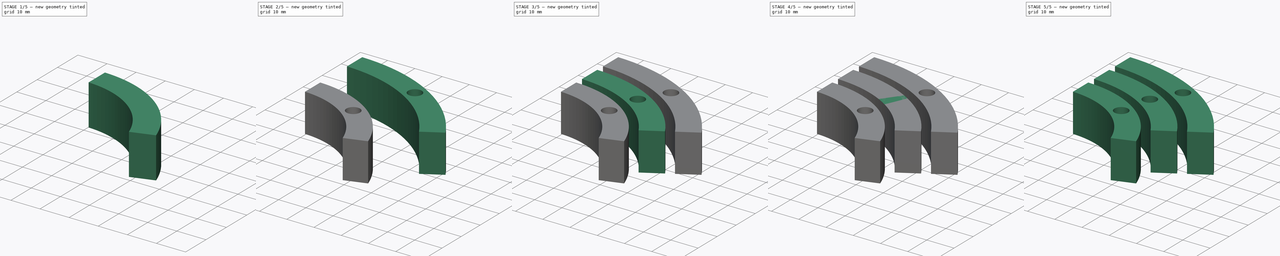
[diagram: build sequence overview — one tinted view per stage of 5, left to right]
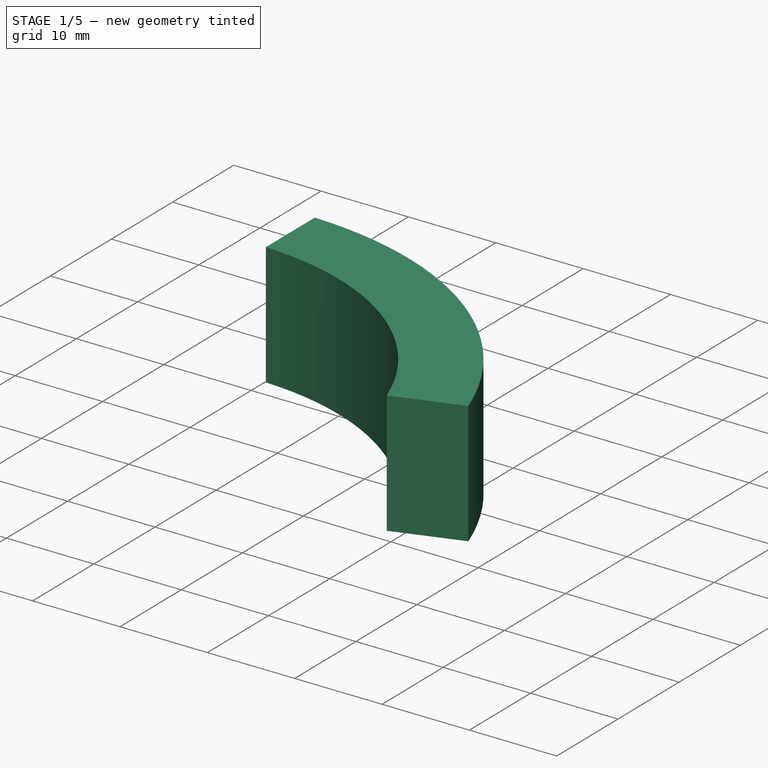
[diagram: stage 1 of 5 — iso view after this stage's code; geometry added in this stage tinted green]
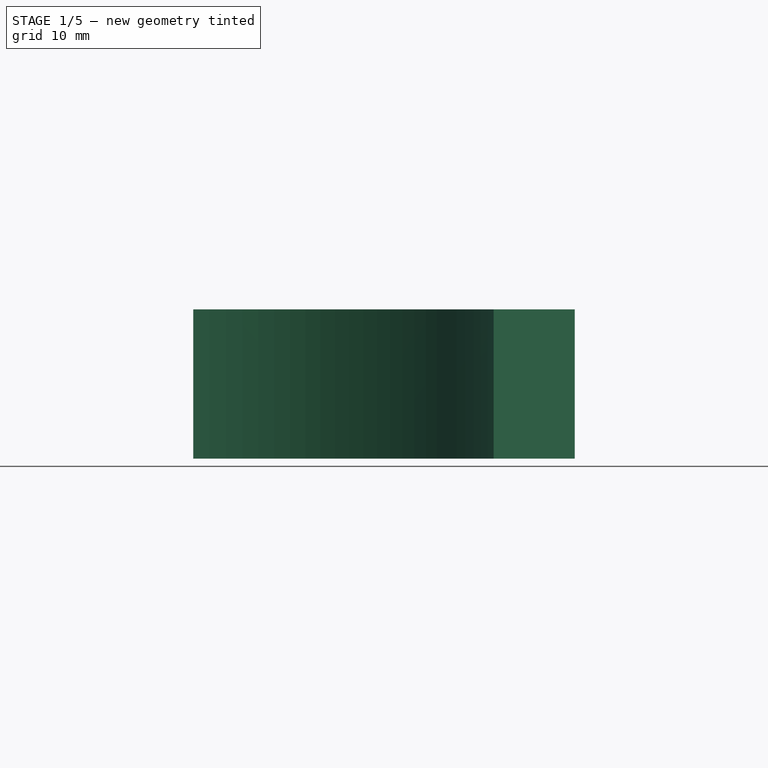
[diagram: stage 1 of 5 — front view after this stage's code; geometry added in this stage tinted green]
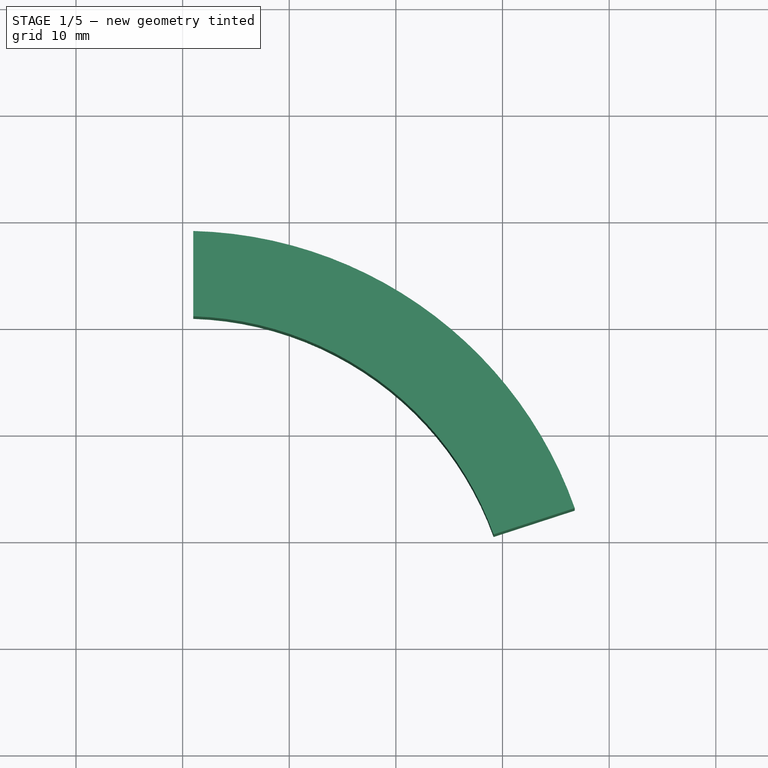
[diagram: stage 1 of 5 — top view after this stage's code; geometry added in this stage tinted green]
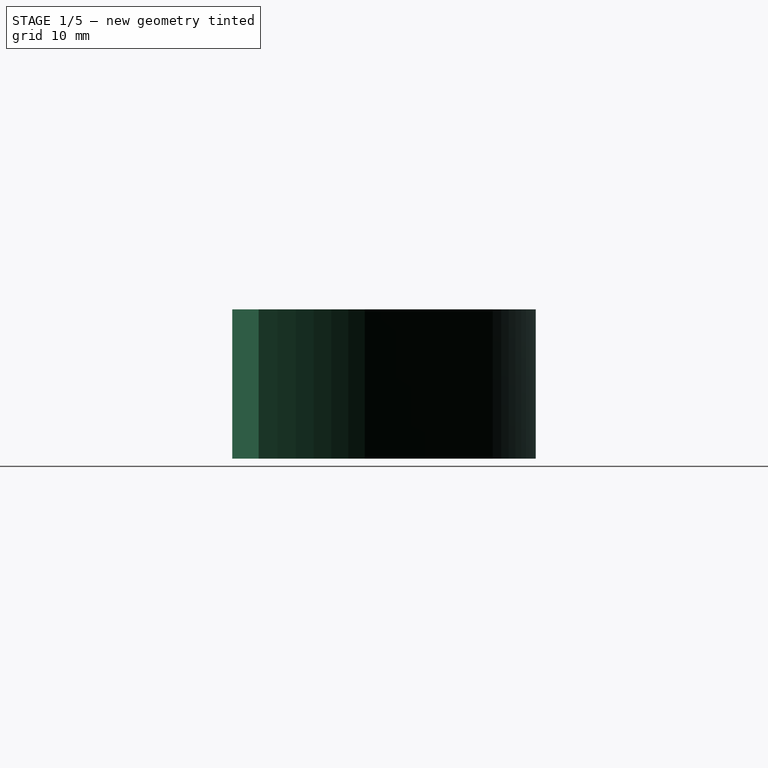
[diagram: stage 1 of 5 — right view after this stage's code; geometry added in this stage tinted green]
FCSTD DOCUMENT  (FreeCAD 0.19R24291 (Git))
Label: Clock
License: All rights reserved
LicenseURL: http://en.wikipedia.org/wiki/All_rights_reserved
objects: Sketcher::SketchObject×34, PartDesign::Pad×17, PartDesign::Pocket×17, PartDesign::Body×17, App::DocumentObjectGroup×3, Spreadsheet::Sheet×1
note: 119 computed .brp shape members not serialized (recipe doc carries the construction recipe); baked Part::Feature solids carry a one-line shape summary decoded from their .brp

FEATURE [PartDesign::Body] Body027  label="Sec006"
  Group = -> [Sketch069,Pad027,Sketch068,Pocket022]
  Origin = -> Origin027
  Placement = pos=(0,0,0) rot=(0,0,1;5.23599rad)
  Tip = -> Pocket022
  expr: .Placement.Rotation.Angle = 5 * <<params>>.sec_angle
FEATURE [App::DocumentObjectGroup] Group  label="Seconds"
  Group = -> [Body,Body023,Body024,Body025,Body026,Body027]
FEATURE [Sketcher::SketchObject] Sketch070  label="HourSegSketch002"
  FullyConstrained = true
  MapMode = 5
  Support = -> [XY_Plane033]
  expr: Constraints[12] = <<params>>.hour_angle
  expr: Constraints[6] = <<params>>.seg_gap
  expr: Constraints[4] = <<params>>.seg_thickness
  expr: Constraints[7] = <<params>>.hour_outer
  expr: Constraints[17] = <<params>>.seg_gap
  expr: Constraints[14] = <<params>>.hour_outer
  expr: .Constraints.Outer = <<params>>.hour_outer
  sketch-geometry (6):
    g0: ArcOfCircle CenterX=0 CenterY=0 CenterZ=0 NormalX=0 NormalY=0 NormalZ=1 AngleXU=0 Radius=39 StartAngle=0.339803 EndAngle=1.54515
    g1: LineSegment StartX=0 StartY=0 StartZ=0 EndX=37.0912 EndY=12.0517 EndZ=0
    g2: ArcOfCircle CenterX=0 CenterY=0 CenterZ=0 NormalX=0 NormalY=0 NormalZ=1 AngleXU=0 Radius=31.0033 StartAngle=0.346419 EndAngle=1.53854
    g3: LineSegment StartX=29.1615 StartY=10.5266 StartZ=0 EndX=36.77 EndY=12.9988 EndZ=0
    g4: LineSegment StartX=1 StartY=38.9872 StartZ=0 EndX=1 EndY=30.9872 EndZ=0
    g5: LineSegment StartX=0 StartY=0 StartZ=0 EndX=0 EndY=39 EndZ=0
  constraints (18):
    c: Coincident(g1,g0)
    c: Radius(g0) = 39  'Outer'
    c: Coincident(g0,g-1)
    c: Coincident(g2,g0)
    c: Distance(g2,g0) = 8
    c: Parallel(g3,g1)
    c: Distance(g3,g1) = 1
    c: Distance(g1) = 39
    c: Coincident(g2,g3)
    c: Coincident(g0,g3)
    c: Coincident(g4,g2)
    c: Coincident(g4,g0)
    c: Angle(g1,g5,g0) = 1.25664
    c: Angle(g-2,g5,g0) = 0
    c: Distance(g5) = 39
    c: Coincident(g5,g0)
    c: Parallel(g4,g5)
    c: Distance(g0,g5) = 1
FEATURE [PartDesign::Pad] Pad028  label="HourSeg002"
  AllowMultiFace = false
  Direction = (1,1,1)
  Length = 14
  Length2 = 100
  Profile = -> Sketch070
  Type = 0
  expr: Length = <<params>>.seg_height
FEATURE [PartDesign::Body] Body028  label="Hour002"
  Group = -> [Sketch070,Pad028,Sketch071,Pocket023]
  Origin = -> Origin028
  Placement = pos=(0,0,0) rot=(0,0,1;1.25664rad)
  Tip = -> Pocket023
  expr: .Placement.Rotation.Angle = 1 * <<params>>.hour_angle
FEATURE [Sketcher::SketchObject] Sketch072  label="HourSegSketch003"
  FullyConstrained = true
  MapMode = 5
  Support = -> [XY_Plane034]
  expr: Constraints[12] = <<params>>.hour_angle
  expr: Constraints[6] = <<params>>.seg_gap
  expr: Constraints[4] = <<params>>.seg_thickness
  expr: Constraints[7] = <<params>>.hour_outer
  expr: Constraints[17] = <<params>>.seg_gap
  expr: Constraints[14] = <<params>>.hour_outer
  expr: .Constraints.Outer = <<params>>.hour_outer
  sketch-geometry (6):
    g0: ArcOfCircle CenterX=0 CenterY=0 CenterZ=0 NormalX=0 NormalY=0 NormalZ=1 AngleXU=0 Radius=39 StartAngle=0.339803 EndAngle=1.54515
    g1: LineSegment StartX=0 StartY=0 StartZ=0 EndX=37.0912 EndY=12.0517 EndZ=0
    g2: ArcOfCircle CenterX=0 CenterY=0 CenterZ=0 NormalX=0 NormalY=0 NormalZ=1 AngleXU=0 Radius=31.0033 StartAngle=0.346419 EndAngle=1.53854
    g3: LineSegment StartX=29.1615 StartY=10.5266 StartZ=0 EndX=36.77 EndY=12.9988 EndZ=0
    g4: LineSegment StartX=1 StartY=38.9872 StartZ=0 EndX=1 EndY=30.9872 EndZ=0
    g5: LineSegment StartX=0 StartY=0 StartZ=0 EndX=0 EndY=39 EndZ=0
  constraints (18):
    c: Coincident(g1,g0)
    c: Radius(g0) = 39  'Outer'
    c: Coincident(g0,g-1)
    c: Coincident(g2,g0)
    c: Distance(g2,g0) = 8
    c: Parallel(g3,g1)
    c: Distance(g3,g1) = 1
    c: Distance(g1) = 39
    c: Coincident(g2,g3)
    c: Coincident(g0,g3)
    c: Coincident(g4,g2)
    c: Coincident(g4,g0)
    c: Angle(g1,g5,g0) = 1.25664
    c: Angle(g-2,g5,g0) = 0
    c: Distance(g5) = 39
    c: Coincident(g5,g0)
    c: Parallel(g4,g5)
    c: Distance(g0,g5) = 1
FEATURE [PartDesign::Pad] Pad029  label="HourSeg003"
  AllowMultiFace = false
  Direction = (1,1,1)
  Length = 14
  Length2 = 100
  Profile = -> Sketch072
  Type = 0
  expr: Length = <<params>>.seg_height
FEATURE [Sketcher::SketchObject] Sketch073  label="HourHoleSketch003"
  ExternalGeometry = -> [Pad029]
  FullyConstrained = true
  MapMode = 5
  Placement = pos=(0,0,14) rot=(0,0,1;0rad)
  Support = -> [Pad029]
  expr: Constraints[8] = <<params>>.hour_angle / 2
  expr: Constraints[10] = <<params>>.hole_radius
  sketch-geometry (4):
    g0: LineSegment StartX=0 StartY=0 StartZ=0 EndX=18.2233 EndY=25.0822 EndZ=0
    g1: LineSegment StartX=18.2233 StartY=25.0822 StartZ=0 EndX=20.5735 EndY=28.3169 EndZ=0
    g2: LineSegment StartX=20.5735 StartY=28.3169 StartZ=0 EndX=22.9236 EndY=31.5517 EndZ=0
    g3: Circle CenterX=20.5735 CenterY=28.3169 CenterZ=0 NormalX=0 NormalY=0 NormalZ=1 AngleXU=0 Radius=2.5
  constraints (11):
    c: Coincident(g0,g-1)
    c: PointOnObject(g0,g-3)
    c: Coincident(g1,g0)
    c: Coincident(g2,g1)
    c: PointOnObject(g2,g-4)
    c: Equal(g1,g2)
    c: Parallel(g2,g1)
    c: Parallel(g1,g0)
    c: Angle(g0,g-2,g-1) = 0.628319
    c: Coincident(g3,g1)
    c: Radius(g3) = 2.5
FEATURE [PartDesign::Pocket] Pocket024  label="HourHole003"
  BaseFeature = -> Pad029
  Length = 8
  Length2 = 100
  Profile = -> Sketch073
  Type = 0
  expr: Length = <<params>>.hole_depth
FEATURE [PartDesign::Body] Body029  label="Hour003"
  Group = -> [Sketch072,Pad029,Sketch073,Pocket024]
  Origin = -> Origin029
  Placement = pos=(0,0,0) rot=(0,0,1;2.51327rad)
  Tip = -> Pocket024
  expr: .Placement.Rotation.Angle = 2 * <<params>>.hour_angle
FEATURE [Sketcher::SketchObject] Sketch074  label="HourSegSketch004"
  FullyConstrained = true
  MapMode = 5
  Support = -> [XY_Plane035]
  expr: Constraints[12] = <<params>>.hour_angle
  expr: Constraints[6] = <<params>>.seg_gap
  expr: Constraints[4] = <<params>>.seg_thickness
  expr: Constraints[7] = <<params>>.hour_outer
  expr: Constraints[17] = <<params>>.seg_gap
  expr: Constraints[14] = <<params>>.hour_outer
  expr: .Constraints.Outer = <<params>>.hour_outer
  sketch-geometry (6):
    g0: ArcOfCircle CenterX=0 CenterY=0 CenterZ=0 NormalX=0 NormalY=0 NormalZ=1 AngleXU=0 Radius=39 StartAngle=0.339803 EndAngle=1.54515
    g1: LineSegment StartX=0 StartY=0 StartZ=0 EndX=37.0912 EndY=12.0517 EndZ=0
    g2: ArcOfCircle CenterX=0 CenterY=0 CenterZ=0 NormalX=0 NormalY=0 NormalZ=1 AngleXU=0 Radius=31.0033 StartAngle=0.346419 EndAngle=1.53854
    g3: LineSegment StartX=29.1615 StartY=10.5266 StartZ=0 EndX=36.77 EndY=12.9988 EndZ=0
    g4: LineSegment StartX=1 StartY=38.9872 StartZ=0 EndX=1 EndY=30.9872 EndZ=0
    g5: LineSegment StartX=0 StartY=0 StartZ=0 EndX=0 EndY=39 EndZ=0
  constraints (18):
    c: Coincident(g1,g0)
    c: Radius(g0) = 39  'Outer'
    c: Coincident(g0,g-1)
    c: Coincident(g2,g0)
    c: Distance(g2,g0) = 8
    c: Parallel(g3,g1)
    c: Distance(g3,g1) = 1
    c: Distance(g1) = 39
    c: Coincident(g2,g3)
    c: Coincident(g0,g3)
    c: Coincident(g4,g2)
    c: Coincident(g4,g0)
    c: Angle(g1,g5,g0) = 1.25664
    c: Angle(g-2,g5,g0) = 0
    c: Distance(g5) = 39
    c: Coincident(g5,g0)
    c: Parallel(g4,g5)
    c: Distance(g0,g5) = 1
FEATURE [PartDesign::Pad] Pad030  label="HourSeg004"
  AllowMultiFace = false
  Direction = (1,1,1)
  Length = 14
  Length2 = 100
  Profile = -> Sketch074
  Type = 0
  expr: Length = <<params>>.seg_height
FEATURE [Sketcher::SketchObject] Sketch075  label="HourHoleSketch004"
  ExternalGeometry = -> [Pad030]
  FullyConstrained = true
  MapMode = 5
  Placement = pos=(0,0,14) rot=(0,0,1;0rad)
  Support = -> [Pad030]
  expr: Constraints[8] = <<params>>.hour_angle / 2
  expr: Constraints[10] = <<params>>.hole_radius
  sketch-geometry (4):
    g0: LineSegment StartX=0 StartY=0 StartZ=0 EndX=18.2233 EndY=25.0822 EndZ=0
    g1: LineSegment StartX=18.2233 StartY=25.0822 StartZ=0 EndX=20.5735 EndY=28.3169 EndZ=0
    g2: LineSegment StartX=20.5735 StartY=28.3169 StartZ=0 EndX=22.9236 EndY=31.5517 EndZ=0
    g3: Circle CenterX=20.5735 CenterY=28.3169 CenterZ=0 NormalX=0 NormalY=0 NormalZ=1 AngleXU=0 Radius=2.5
  constraints (11):
    c: Coincident(g0,g-1)
    c: PointOnObject(g0,g-3)
    c: Coincident(g1,g0)
    c: Coincident(g2,g1)
    c: PointOnObject(g2,g-4)
    c: Equal(g1,g2)
    c: Parallel(g2,g1)
    c: Parallel(g1,g0)
    c: Angle(g0,g-2,g-1) = 0.628319
    c: Coincident(g3,g1)
    c: Radius(g3) = 2.5
FEATURE [PartDesign::Pocket] Pocket025  label="HourHole004"
  BaseFeature = -> Pad030
  Length = 8
  Length2 = 100
  Profile = -> Sketch075
  Type = 0
  expr: Length = <<params>>.hole_depth
FEATURE [PartDesign::Body] Body030  label="Hour004"
  Group = -> [Sketch074,Pad030,Sketch075,Pocket025]
  Origin = -> Origin030
  Placement = pos=(0,0,0) rot=(0,0,1;3.76991rad)
  Tip = -> Pocket025
  expr: .Placement.Rotation.Angle = 3 * <<params>>.hour_angle
FEATURE [Sketcher::SketchObject] Sketch076  label="HourSegSketch005"
  FullyConstrained = true
  MapMode = 5
  Support = -> [XY_Plane036]
  expr: Constraints[12] = <<params>>.hour_angle
  expr: Constraints[6] = <<params>>.seg_gap
  expr: Constraints[4] = <<params>>.seg_thickness
  expr: Constraints[7] = <<params>>.hour_outer
  expr: Constraints[17] = <<params>>.seg_gap
  expr: Constraints[14] = <<params>>.hour_outer
  expr: .Constraints.Outer = <<params>>.hour_outer
  sketch-geometry (6):
    g0: ArcOfCircle CenterX=0 CenterY=0 CenterZ=0 NormalX=0 NormalY=0 NormalZ=1 AngleXU=0 Radius=39 StartAngle=0.339803 EndAngle=1.54515
    g1: LineSegment StartX=0 StartY=0 StartZ=0 EndX=37.0912 EndY=12.0517 EndZ=0
    g2: ArcOfCircle CenterX=0 CenterY=0 CenterZ=0 NormalX=0 NormalY=0 NormalZ=1 AngleXU=0 Radius=31.0033 StartAngle=0.346419 EndAngle=1.53854
    g3: LineSegment StartX=29.1615 StartY=10.5266 StartZ=0 EndX=36.77 EndY=12.9988 EndZ=0
    g4: LineSegment StartX=1 StartY=38.9872 StartZ=0 EndX=1 EndY=30.9872 EndZ=0
    g5: LineSegment StartX=0 StartY=0 StartZ=0 EndX=0 EndY=39 EndZ=0
  constraints (18):
    c: Coincident(g1,g0)
    c: Radius(g0) = 39  'Outer'
    c: Coincident(g0,g-1)
    c: Coincident(g2,g0)
    c: Distance(g2,g0) = 8
    c: Parallel(g3,g1)
    c: Distance(g3,g1) = 1
    c: Distance(g1) = 39
    c: Coincident(g2,g3)
    c: Coincident(g0,g3)
    c: Coincident(g4,g2)
    c: Coincident(g4,g0)
    c: Angle(g1,g5,g0) = 1.25664
    c: Angle(g-2,g5,g0) = 0
    c: Distance(g5) = 39
    c: Coincident(g5,g0)
    c: Parallel(g4,g5)
    c: Distance(g0,g5) = 1
FEATURE [PartDesign::Pad] Pad031  label="HourSeg005"
  AllowMultiFace = false
  Direction = (1,1,1)
  Length = 14
  Length2 = 100
  Profile = -> Sketch076
  Type = 0
  expr: Length = <<params>>.seg_height
FEATURE [Sketcher::SketchObject] Sketch077  label="HourHoleSketch005"
  ExternalGeometry = -> [Pad031]
  FullyConstrained = true
  MapMode = 5
  Placement = pos=(0,0,14) rot=(0,0,1;0rad)
  Support = -> [Pad031]
  expr: Constraints[8] = <<params>>.hour_angle / 2
  expr: Constraints[10] = <<params>>.hole_radius
  sketch-geometry (4):
    g0: LineSegment StartX=0 StartY=0 StartZ=0 EndX=18.2233 EndY=25.0822 EndZ=0
    g1: LineSegment StartX=18.2233 StartY=25.0822 StartZ=0 EndX=20.5735 EndY=28.3169 EndZ=0
    g2: LineSegment StartX=20.5735 StartY=28.3169 StartZ=0 EndX=22.9236 EndY=31.5517 EndZ=0
    g3: Circle CenterX=20.5735 CenterY=28.3169 CenterZ=0 NormalX=0 NormalY=0 NormalZ=1 AngleXU=0 Radius=2.5
  constraints (11):
    c: Coincident(g0,g-1)
    c: PointOnObject(g0,g-3)
    c: Coincident(g1,g0)
    c: Coincident(g2,g1)
    c: PointOnObject(g2,g-4)
    c: Equal(g1,g2)
    c: Parallel(g2,g1)
    c: Parallel(g1,g0)
    c: Angle(g0,g-2,g-1) = 0.628319
    c: Coincident(g3,g1)
    c: Radius(g3) = 2.5
FEATURE [PartDesign::Pocket] Pocket026  label="HourHole005"
  BaseFeature = -> Pad031
  Length = 8
  Length2 = 100
  Profile = -> Sketch077
  Type = 0
  expr: Length = <<params>>.hole_depth
FEATURE [PartDesign::Body] Body031  label="Hour005"
  Group = -> [Sketch076,Pad031,Sketch077,Pocket026]
  Origin = -> Origin031
  Placement = pos=(0,0,0) rot=(0,0,1;5.02655rad)
  Tip = -> Pocket026
  expr: .Placement.Rotation.Angle = 4 * <<params>>.hour_angle
FEATURE [App::DocumentObjectGroup] Group002  label="Hours"
  Group = -> [Body012,Body028,Body029,Body030,Body031]
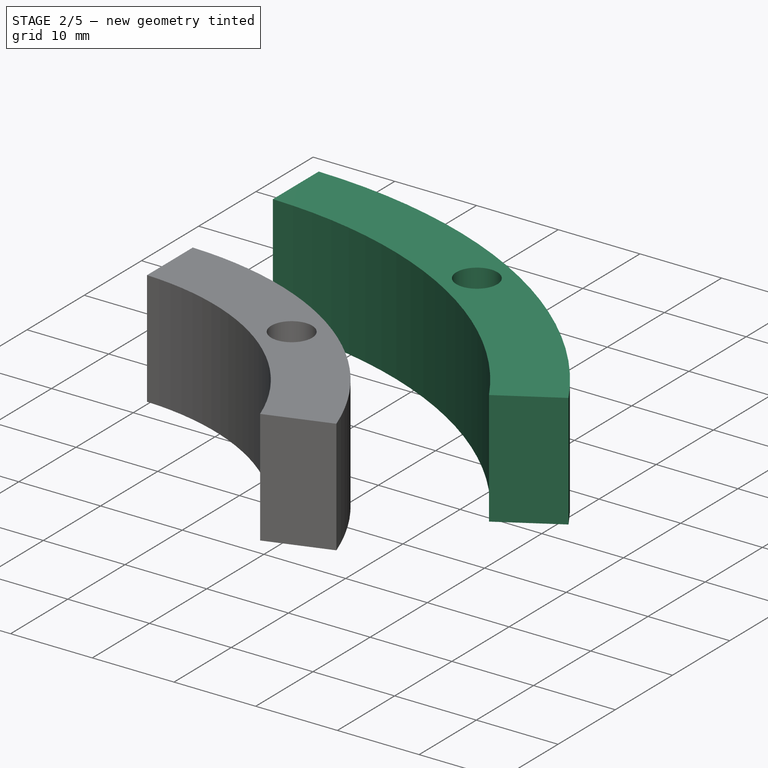
[diagram: stage 2 of 5 — iso view after this stage's code; geometry added in this stage tinted green]
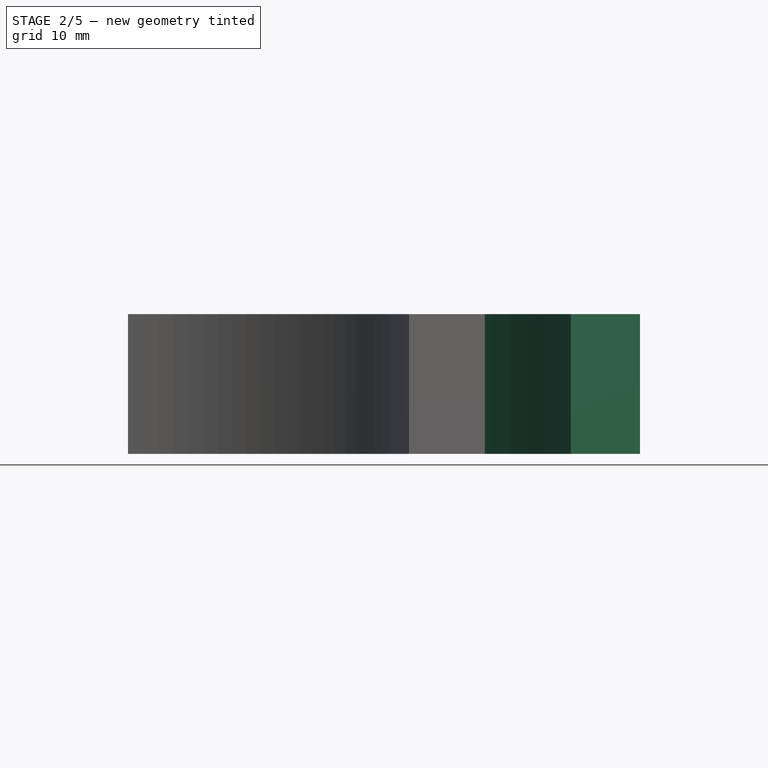
[diagram: stage 2 of 5 — front view after this stage's code; geometry added in this stage tinted green]
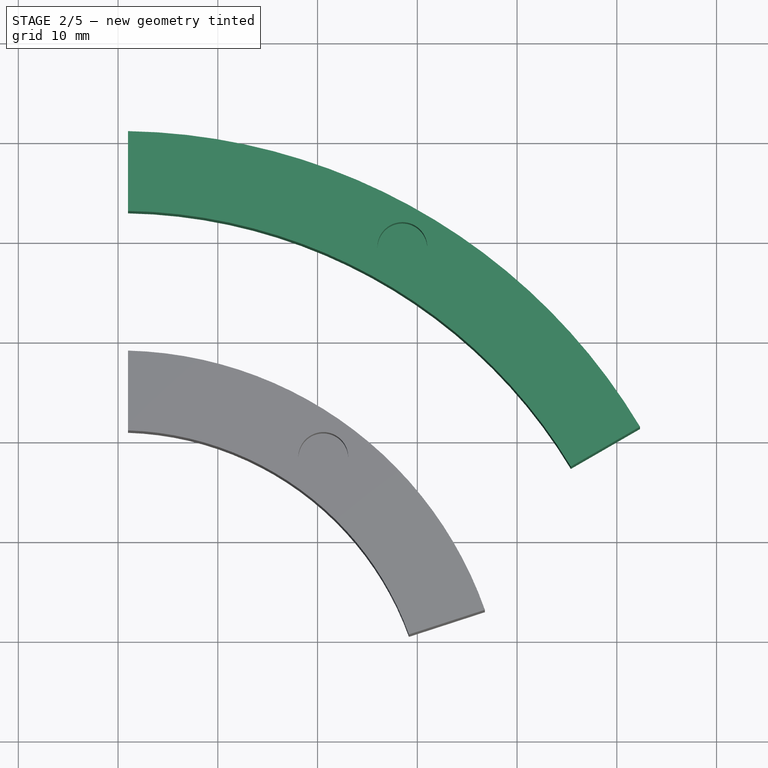
[diagram: stage 2 of 5 — top view after this stage's code; geometry added in this stage tinted green]
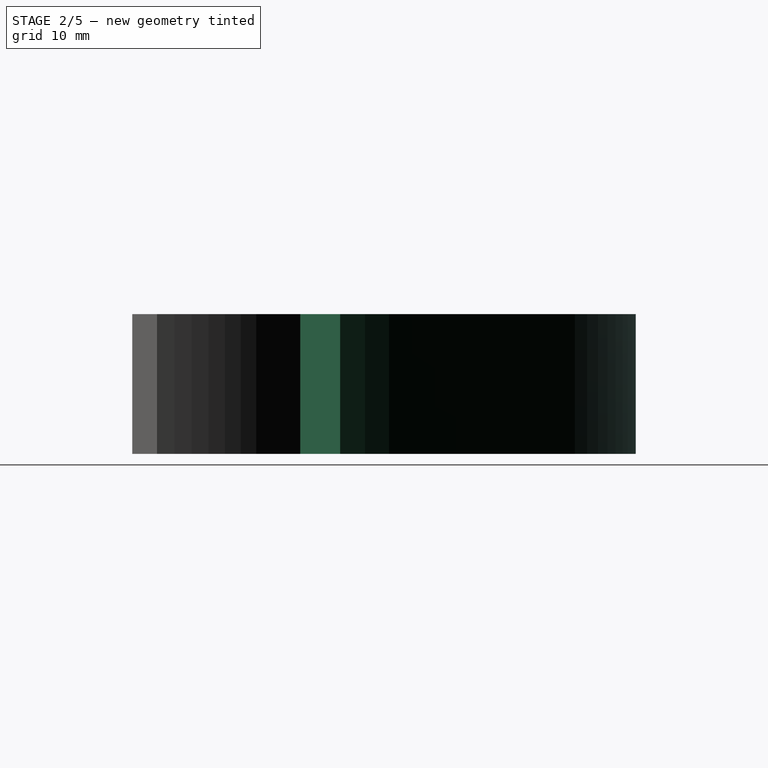
[diagram: stage 2 of 5 — right view after this stage's code; geometry added in this stage tinted green]
FEATURE [PartDesign::Body] Body024  label="Sec003"
  Group = -> [Sketch063,Pad024,Sketch062,Pocket019]
  Origin = -> Origin024
  Placement = pos=(0,0,0) rot=(0,0,1;2.0944rad)
  Tip = -> Pocket019
  expr: .Placement.Rotation.Angle = 2 * <<params>>.sec_angle
FEATURE [Sketcher::SketchObject] Sketch065  label="SegSegSketch004"
  FullyConstrained = true
  MapMode = 5
  Support = -> [XY_Plane030]
  expr: Constraints[6] = <<params>>.seg_gap
  expr: Constraints[12] = <<params>>.sec_angle
  expr: Constraints[1] = <<params>>.sec_outer
  expr: Constraints[4] = <<params>>.seg_thickness
  expr: Constraints[17] = <<params>>.seg_gap
  expr: Constraints[14] = <<params>>.sec_outer
  expr: Constraints[7] = <<params>>.sec_outer
  sketch-geometry (6):
    g0: ArcOfCircle CenterX=0 CenterY=0 CenterZ=0 NormalX=0 NormalY=0 NormalZ=1 AngleXU=0 Radius=61 StartAngle=0.539993 EndAngle=1.5544
    g1: LineSegment StartX=0 StartY=0 StartZ=0 EndX=52.8275 EndY=30.5 EndZ=0
    g2: ArcOfCircle CenterX=0 CenterY=0 CenterZ=0 NormalX=0 NormalY=0 NormalZ=1 AngleXU=0 Radius=53.0012 StartAngle=0.542467 EndAngle=1.55193
    g3: LineSegment StartX=45.3922 StartY=27.3619 StartZ=0 EndX=52.3205 EndY=31.3619 EndZ=0
    g4: LineSegment StartX=1 StartY=60.9918 StartZ=0 EndX=1 EndY=52.9918 EndZ=0
    g5: LineSegment StartX=0 StartY=0 StartZ=0 EndX=0 EndY=61 EndZ=0
  constraints (18):
    c: Coincident(g1,g0)
    c: Radius(g0) = 61
    c: Coincident(g0,g-1)
    c: Coincident(g2,g0)
    c: Distance(g2,g0) = 8
    c: Parallel(g3,g1)
    c: Distance(g3,g1) = 1
    c: Distance(g1) = 61
    c: Coincident(g2,g3)
    c: Coincident(g0,g3)
    c: Coincident(g4,g2)
    c: Coincident(g4,g0)
    c: Angle(g1,g5,g0) = 1.0472
    c: Angle(g-2,g5,g0) = 0
    c: Distance(g5) = 61
    c: Coincident(g5,g0)
    c: Parallel(g4,g5)
    c: Distance(g0,g5) = 1
FEATURE [PartDesign::Pad] Pad025  label="SecSeg004"
  AllowMultiFace = false
  Direction = (1,1,1)
  Length = 14
  Length2 = 100
  Profile = -> Sketch065
  Type = 0
  expr: Length = <<params>>.seg_height
FEATURE [Sketcher::SketchObject] Sketch064  label="SecHoleSketch004"
  ExternalGeometry = -> [Pad025]
  FullyConstrained = true
  MapMode = 5
  Placement = pos=(0,0,14) rot=(0,0,1;0rad)
  Support = -> [Pad025]
  expr: Constraints[6] = <<params>>.sec_angle / 2
  expr: Constraints[0] = <<params>>.hole_radius
  sketch-geometry (4):
    g0: Circle CenterX=28.5003 CenterY=49.364 CenterZ=0 NormalX=0 NormalY=0 NormalZ=1 AngleXU=0 Radius=2.5
    g1: LineSegment StartX=26.5006 StartY=45.9004 StartZ=0 EndX=28.5003 EndY=49.364 EndZ=0
    g2: LineSegment StartX=28.5003 StartY=49.364 StartZ=0 EndX=30.5 EndY=52.8275 EndZ=0
    g3: LineSegment StartX=0 StartY=0 StartZ=0 EndX=26.5006 EndY=45.9004 EndZ=0
  constraints (11):
    c: Radius(g0) = 2.5
    c: Coincident(g2,g1)
    c: PointOnObject(g2,g-4)
    c: Equal(g2,g1)
    c: Coincident(g0,g1)
    c: Coincident(g3,g-1)
    c: Angle(g3,g-2,g-1) = 0.523599
    c: Coincident(g1,g3)
    c: PointOnObject(g1,g-3)
    c: Parallel(g3,g1)
    c: Parallel(g1,g2)
FEATURE [PartDesign::Pocket] Pocket020  label="SecHole004"
  AllowMultiFace = false
  BaseFeature = -> Pad025
  Length = 8
  Length2 = 100
  Profile = -> Sketch064
  Type = 0
  expr: Length = <<params>>.hole_depth
FEATURE [PartDesign::Body] Body025  label="Sec004"
  Group = -> [Sketch065,Pad025,Sketch064,Pocket020]
  Origin = -> Origin025
  Placement = pos=(0,0,0) rot=(0,0,1;3.14159rad)
  Tip = -> Pocket020
  expr: .Placement.Rotation.Angle = 3 * <<params>>.sec_angle
FEATURE [Sketcher::SketchObject] Sketch067  label="SegSegSketch005"
  FullyConstrained = true
  MapMode = 5
  Support = -> [XY_Plane031]
  expr: Constraints[6] = <<params>>.seg_gap
  expr: Constraints[12] = <<params>>.sec_angle
  expr: Constraints[1] = <<params>>.sec_outer
  expr: Constraints[4] = <<params>>.seg_thickness
  expr: Constraints[17] = <<params>>.seg_gap
  expr: Constraints[14] = <<params>>.sec_outer
  expr: Constraints[7] = <<params>>.sec_outer
  sketch-geometry (6):
    g0: ArcOfCircle CenterX=0 CenterY=0 CenterZ=0 NormalX=0 NormalY=0 NormalZ=1 AngleXU=0 Radius=61 StartAngle=0.539993 EndAngle=1.5544
    g1: LineSegment StartX=0 StartY=0 StartZ=0 EndX=52.8275 EndY=30.5 EndZ=0
    g2: ArcOfCircle CenterX=0 CenterY=0 CenterZ=0 NormalX=0 NormalY=0 NormalZ=1 AngleXU=0 Radius=53.0012 StartAngle=0.542467 EndAngle=1.55193
    g3: LineSegment StartX=45.3922 StartY=27.3619 StartZ=0 EndX=52.3205 EndY=31.3619 EndZ=0
    g4: LineSegment StartX=1 StartY=60.9918 StartZ=0 EndX=1 EndY=52.9918 EndZ=0
    g5: LineSegment StartX=0 StartY=0 StartZ=0 EndX=0 EndY=61 EndZ=0
  constraints (18):
    c: Coincident(g1,g0)
    c: Radius(g0) = 61
    c: Coincident(g0,g-1)
    c: Coincident(g2,g0)
    c: Distance(g2,g0) = 8
    c: Parallel(g3,g1)
    c: Distance(g3,g1) = 1
    c: Distance(g1) = 61
    c: Coincident(g2,g3)
    c: Coincident(g0,g3)
    c: Coincident(g4,g2)
    c: Coincident(g4,g0)
    c: Angle(g1,g5,g0) = 1.0472
    c: Angle(g-2,g5,g0) = 0
    c: Distance(g5) = 61
    c: Coincident(g5,g0)
    c: Parallel(g4,g5)
    c: Distance(g0,g5) = 1
FEATURE [PartDesign::Pad] Pad026  label="SecSeg005"
  AllowMultiFace = false
  Direction = (1,1,1)
  Length = 14
  Length2 = 100
  Profile = -> Sketch067
  Type = 0
  expr: Length = <<params>>.seg_height
FEATURE [Sketcher::SketchObject] Sketch066  label="SecHoleSketch005"
  ExternalGeometry = -> [Pad026]
  FullyConstrained = true
  MapMode = 5
  Placement = pos=(0,0,14) rot=(0,0,1;0rad)
  Support = -> [Pad026]
  expr: Constraints[6] = <<params>>.sec_angle / 2
  expr: Constraints[0] = <<params>>.hole_radius
  sketch-geometry (4):
    g0: Circle CenterX=28.5003 CenterY=49.364 CenterZ=0 NormalX=0 NormalY=0 NormalZ=1 AngleXU=0 Radius=2.5
    g1: LineSegment StartX=26.5006 StartY=45.9004 StartZ=0 EndX=28.5003 EndY=49.364 EndZ=0
    g2: LineSegment StartX=28.5003 StartY=49.364 StartZ=0 EndX=30.5 EndY=52.8275 EndZ=0
    g3: LineSegment StartX=0 StartY=0 StartZ=0 EndX=26.5006 EndY=45.9004 EndZ=0
  constraints (11):
    c: Radius(g0) = 2.5
    c: Coincident(g2,g1)
    c: PointOnObject(g2,g-4)
    c: Equal(g2,g1)
    c: Coincident(g0,g1)
    c: Coincident(g3,g-1)
    c: Angle(g3,g-2,g-1) = 0.523599
    c: Coincident(g1,g3)
    c: PointOnObject(g1,g-3)
    c: Parallel(g3,g1)
    c: Parallel(g1,g2)
FEATURE [PartDesign::Pocket] Pocket021  label="SecHole005"
  AllowMultiFace = false
  BaseFeature = -> Pad026
  Length = 8
  Length2 = 100
  Profile = -> Sketch066
  Type = 0
  expr: Length = <<params>>.hole_depth
FEATURE [PartDesign::Body] Body026  label="Sec005"
  Group = -> [Sketch067,Pad026,Sketch066,Pocket021]
  Origin = -> Origin026
  Placement = pos=(0,0,0) rot=(0,0,1;4.18879rad)
  Tip = -> Pocket021
  expr: .Placement.Rotation.Angle = 4 * <<params>>.sec_angle
FEATURE [Sketcher::SketchObject] Sketch069  label="SegSegSketch006"
  FullyConstrained = true
  MapMode = 5
  Support = -> [XY_Plane032]
  expr: Constraints[6] = <<params>>.seg_gap
  expr: Constraints[12] = <<params>>.sec_angle
  expr: Constraints[1] = <<params>>.sec_outer
  expr: Constraints[4] = <<params>>.seg_thickness
  expr: Constraints[17] = <<params>>.seg_gap
  expr: Constraints[14] = <<params>>.sec_outer
  expr: Constraints[7] = <<params>>.sec_outer
  sketch-geometry (6):
    g0: ArcOfCircle CenterX=0 CenterY=0 CenterZ=0 NormalX=0 NormalY=0 NormalZ=1 AngleXU=0 Radius=61 StartAngle=0.539993 EndAngle=1.5544
    g1: LineSegment StartX=0 StartY=0 StartZ=0 EndX=52.8275 EndY=30.5 EndZ=0
    g2: ArcOfCircle CenterX=0 CenterY=0 CenterZ=0 NormalX=0 NormalY=0 NormalZ=1 AngleXU=0 Radius=53.0012 StartAngle=0.542467 EndAngle=1.55193
    g3: LineSegment StartX=45.3922 StartY=27.3619 StartZ=0 EndX=52.3205 EndY=31.3619 EndZ=0
    g4: LineSegment StartX=1 StartY=60.9918 StartZ=0 EndX=1 EndY=52.9918 EndZ=0
    g5: LineSegment StartX=0 StartY=0 StartZ=0 EndX=0 EndY=61 EndZ=0
  constraints (18):
    c: Coincident(g1,g0)
    c: Radius(g0) = 61
    c: Coincident(g0,g-1)
    c: Coincident(g2,g0)
    c: Distance(g2,g0) = 8
    c: Parallel(g3,g1)
    c: Distance(g3,g1) = 1
    c: Distance(g1) = 61
    c: Coincident(g2,g3)
    c: Coincident(g0,g3)
    c: Coincident(g4,g2)
    c: Coincident(g4,g0)
    c: Angle(g1,g5,g0) = 1.0472
    c: Angle(g-2,g5,g0) = 0
    c: Distance(g5) = 61
    c: Coincident(g5,g0)
    c: Parallel(g4,g5)
    c: Distance(g0,g5) = 1
FEATURE [PartDesign::Pad] Pad027  label="SecSeg006"
  AllowMultiFace = false
  Direction = (1,1,1)
  Length = 14
  Length2 = 100
  Profile = -> Sketch069
  Type = 0
  expr: Length = <<params>>.seg_height
FEATURE [Sketcher::SketchObject] Sketch068  label="SecHoleSketch006"
  ExternalGeometry = -> [Pad027]
  FullyConstrained = true
  MapMode = 5
  Placement = pos=(0,0,14) rot=(0,0,1;0rad)
  Support = -> [Pad027]
  expr: Constraints[6] = <<params>>.sec_angle / 2
  expr: Constraints[0] = <<params>>.hole_radius
  sketch-geometry (4):
    g0: Circle CenterX=28.5003 CenterY=49.364 CenterZ=0 NormalX=0 NormalY=0 NormalZ=1 AngleXU=0 Radius=2.5
    g1: LineSegment StartX=26.5006 StartY=45.9004 StartZ=0 EndX=28.5003 EndY=49.364 EndZ=0
    g2: LineSegment StartX=28.5003 StartY=49.364 StartZ=0 EndX=30.5 EndY=52.8275 EndZ=0
    g3: LineSegment StartX=0 StartY=0 StartZ=0 EndX=26.5006 EndY=45.9004 EndZ=0
  constraints (11):
    c: Radius(g0) = 2.5
    c: Coincident(g2,g1)
    c: PointOnObject(g2,g-4)
    c: Equal(g2,g1)
    c: Coincident(g0,g1)
    c: Coincident(g3,g-1)
    c: Angle(g3,g-2,g-1) = 0.523599
    c: Coincident(g1,g3)
    c: PointOnObject(g1,g-3)
    c: Parallel(g3,g1)
    c: Parallel(g1,g2)
FEATURE [PartDesign::Pocket] Pocket022  label="SecHole006"
  AllowMultiFace = false
  BaseFeature = -> Pad027
  Length = 8
  Length2 = 100
  Profile = -> Sketch068
  Type = 0
  expr: Length = <<params>>.hole_depth
FEATURE [Sketcher::SketchObject] Sketch071  label="HourHoleSketch002"
  ExternalGeometry = -> [Pad028]
  FullyConstrained = true
  MapMode = 5
  Placement = pos=(0,0,14) rot=(0,0,1;0rad)
  Support = -> [Pad028]
  expr: Constraints[8] = <<params>>.hour_angle / 2
  expr: Constraints[10] = <<params>>.hole_radius
  sketch-geometry (4):
    g0: LineSegment StartX=0 StartY=0 StartZ=0 EndX=18.2233 EndY=25.0822 EndZ=0
    g1: LineSegment StartX=18.2233 StartY=25.0822 StartZ=0 EndX=20.5735 EndY=28.3169 EndZ=0
    g2: LineSegment StartX=20.5735 StartY=28.3169 StartZ=0 EndX=22.9236 EndY=31.5517 EndZ=0
    g3: Circle CenterX=20.5735 CenterY=28.3169 CenterZ=0 NormalX=0 NormalY=0 NormalZ=1 AngleXU=0 Radius=2.5
  constraints (11):
    c: Coincident(g0,g-1)
    c: PointOnObject(g0,g-3)
    c: Coincident(g1,g0)
    c: Coincident(g2,g1)
    c: PointOnObject(g2,g-4)
    c: Equal(g1,g2)
    c: Parallel(g2,g1)
    c: Parallel(g1,g0)
    c: Angle(g0,g-2,g-1) = 0.628319
    c: Coincident(g3,g1)
    c: Radius(g3) = 2.5
FEATURE [PartDesign::Pocket] Pocket023  label="HourHole002"
  BaseFeature = -> Pad028
  Length = 8
  Length2 = 100
  Profile = -> Sketch071
  Type = 0
  expr: Length = <<params>>.hole_depth
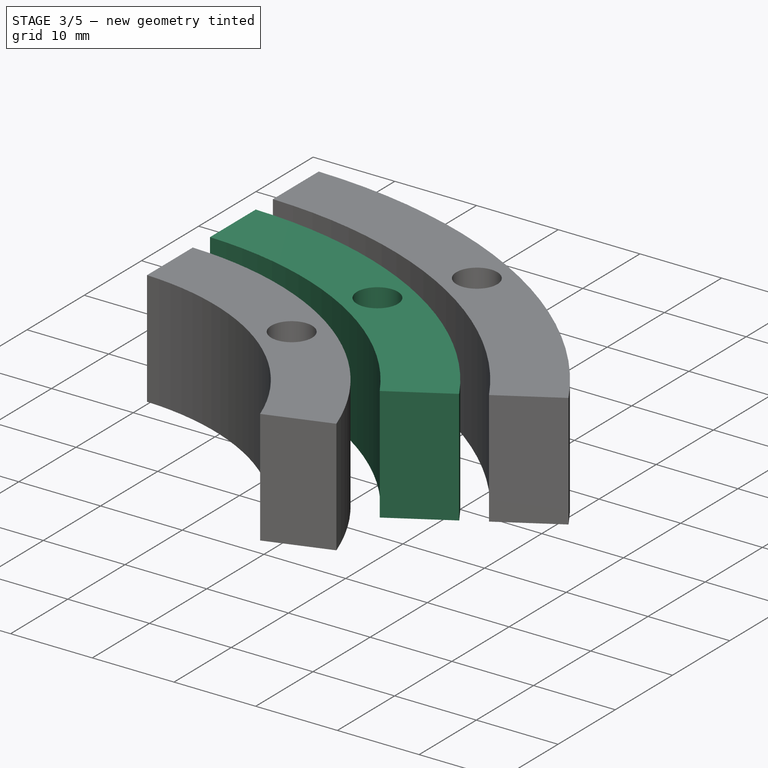
[diagram: stage 3 of 5 — iso view after this stage's code; geometry added in this stage tinted green]
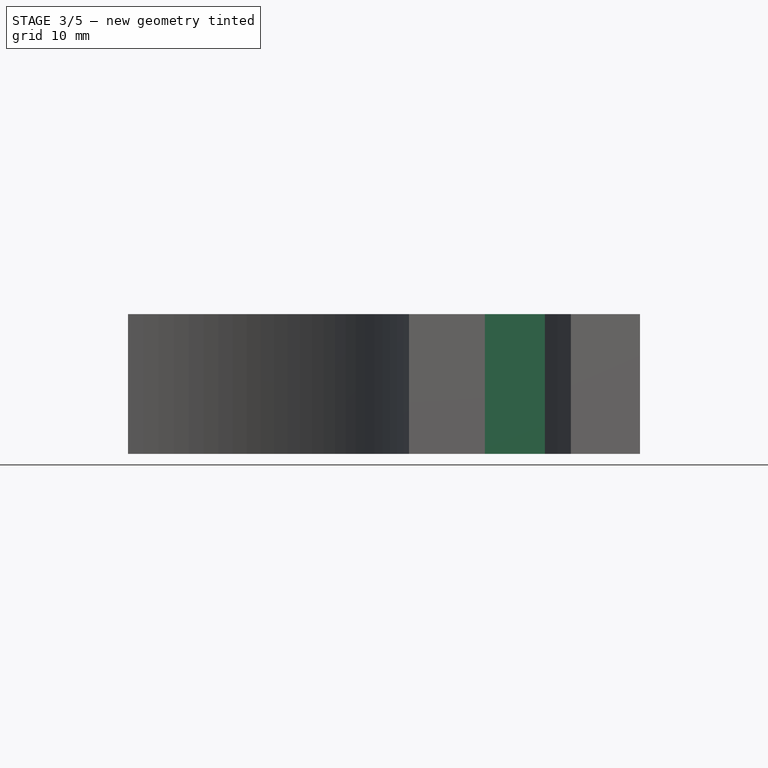
[diagram: stage 3 of 5 — front view after this stage's code; geometry added in this stage tinted green]
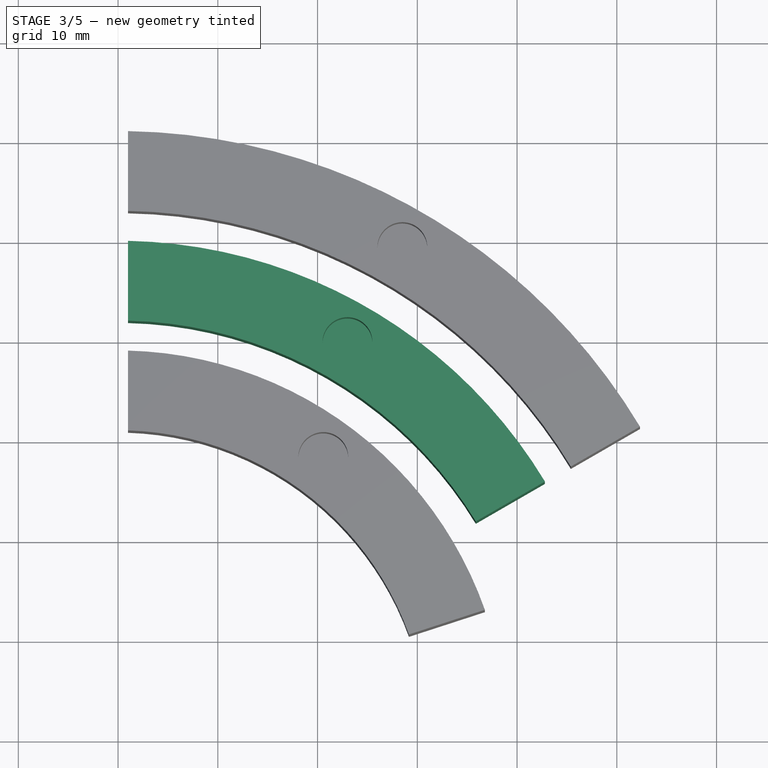
[diagram: stage 3 of 5 — top view after this stage's code; geometry added in this stage tinted green]
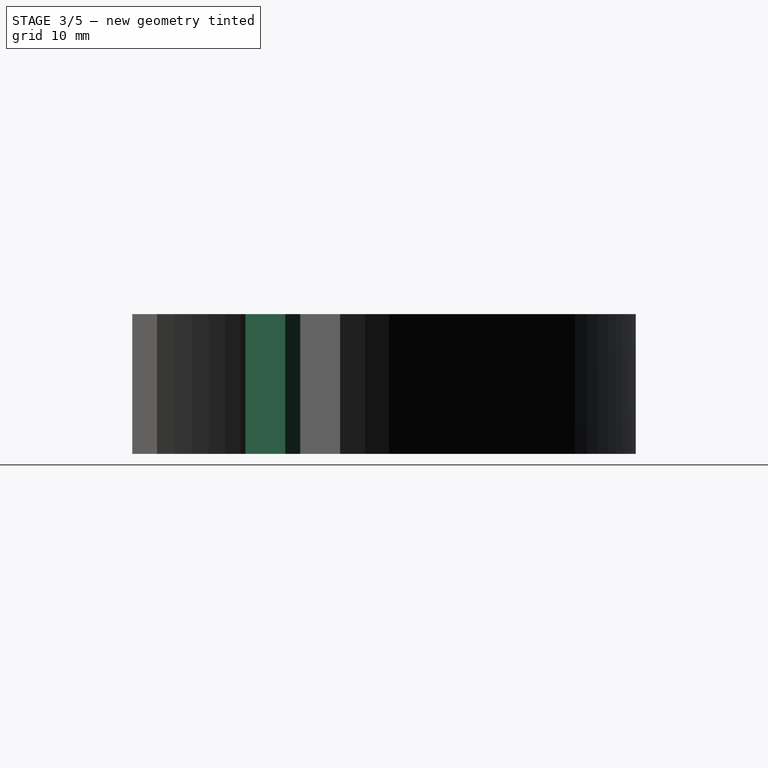
[diagram: stage 3 of 5 — right view after this stage's code; geometry added in this stage tinted green]
FEATURE [PartDesign::Body] Body021  label="Min005"
  Group = -> [Sketch056,Pad021,Sketch057,Pocket016]
  Origin = -> Origin021
  Placement = pos=(0,0,0) rot=(0,0,1;4.18879rad)
  Tip = -> Pocket016
  expr: .Placement.Rotation.Angle = 4 * <<params>>.min_angle
FEATURE [Sketcher::SketchObject] Sketch058  label="MinSegSketch006"
  FullyConstrained = true
  MapMode = 5
  Support = -> [XY_Plane027]
  expr: Constraints[6] = <<params>>.seg_gap
  expr: Constraints[4] = <<params>>.seg_thickness
  expr: Constraints[12] = <<params>>.min_angle
  expr: Constraints[7] = <<params>>.min_outer
  expr: Constraints[17] = <<params>>.seg_gap
  expr: Constraints[14] = <<params>>.min_outer
  expr: .Constraints.Outer = <<params>>.min_outer
  sketch-geometry (6):
    g0: ArcOfCircle CenterX=0 CenterY=0 CenterZ=0 NormalX=0 NormalY=0 NormalZ=1 AngleXU=0 Radius=50 StartAngle=0.5436 EndAngle=1.55079
    g1: LineSegment StartX=0 StartY=0 StartZ=0 EndX=43.3013 EndY=25 EndZ=0
    g2: ArcOfCircle CenterX=0 CenterY=0 CenterZ=0 NormalX=0 NormalY=0 NormalZ=1 AngleXU=0 Radius=42.0019 StartAngle=0.547409 EndAngle=1.54699
    g3: LineSegment StartX=35.8644 StartY=21.861 StartZ=0 EndX=42.7926 EndY=25.861 EndZ=0
    g4: LineSegment StartX=1 StartY=49.99 StartZ=0 EndX=1 EndY=41.99 EndZ=0
    g5: LineSegment StartX=0 StartY=0 StartZ=0 EndX=0 EndY=50 EndZ=0
  constraints (18):
    c: Coincident(g1,g0)
    c: Radius(g0) = 50  'Outer'
    c: Coincident(g0,g-1)
    c: Coincident(g2,g0)
    c: Distance(g2,g0) = 8
    c: Parallel(g3,g1)
    c: Distance(g3,g1) = 1
    c: Distance(g1) = 50
    c: Coincident(g2,g3)
    c: Coincident(g0,g3)
    c: Coincident(g4,g2)
    c: Coincident(g4,g0)
    c: Angle(g1,g5,g0) = 1.0472
    c: Angle(g-2,g5,g0) = 0
    c: Distance(g5) = 50
    c: Coincident(g5,g0)
    c: Parallel(g4,g5)
    c: Distance(g0,g5) = 1
FEATURE [PartDesign::Pad] Pad022  label="MinSeg006"
  AllowMultiFace = false
  Direction = (1,1,1)
  Length = 14
  Length2 = 100
  Profile = -> Sketch058
  Type = 0
  expr: Length = <<params>>.seg_height
FEATURE [Sketcher::SketchObject] Sketch059  label="MinHoleSketch006"
  ExternalGeometry = -> [Pad022]
  FullyConstrained = true
  MapMode = 5
  Placement = pos=(0,0,14) rot=(0,0,1;0rad)
  Support = -> [Pad022]
  expr: Constraints[8] = <<params>>.min_angle / 2
  expr: Constraints[10] = <<params>>.hole_radius
  sketch-geometry (4):
    g0: LineSegment StartX=0 StartY=0 StartZ=0 EndX=21.001 EndY=36.3747 EndZ=0
    g1: LineSegment StartX=21.001 StartY=36.3747 StartZ=0 EndX=23.0005 EndY=39.838 EndZ=0
    g2: LineSegment StartX=25 StartY=43.3013 StartZ=0 EndX=23.0005 EndY=39.838 EndZ=0
    g3: Circle CenterX=23.0005 CenterY=39.838 CenterZ=0 NormalX=0 NormalY=0 NormalZ=1 AngleXU=0 Radius=2.5
  constraints (11):
    c: Coincident(g0,g-1)
    c: PointOnObject(g0,g-3)
    c: Coincident(g1,g0)
    c: Coincident(g2,g1)
    c: Equal(g1,g2)
    c: Parallel(g0,g1)
    c: Parallel(g1,g2)
    c: PointOnObject(g2,g-4)
    c: Angle(g0,g-2,g-1) = 0.523599
    c: Coincident(g3,g1)
    c: Radius(g3) = 2.5
FEATURE [PartDesign::Pocket] Pocket017  label="MinHole006"
  AllowMultiFace = false
  BaseFeature = -> Pad022
  Length = 8
  Length2 = 100
  Profile = -> Sketch059
  Type = 0
  expr: Length = <<params>>.hole_depth
FEATURE [PartDesign::Body] Body022  label="Min006"
  Group = -> [Sketch058,Pad022,Sketch059,Pocket017]
  Origin = -> Origin022
  Placement = pos=(0,0,0) rot=(0,0,1;5.23599rad)
  Tip = -> Pocket017
  expr: .Placement.Rotation.Angle = 5 * <<params>>.min_angle
FEATURE [App::DocumentObjectGroup] Group001  label="Minutes"
  Group = -> [Body006,Body018,Body019,Body020,Body021,Body022]
FEATURE [Sketcher::SketchObject] Sketch061  label="SegSegSketch002"
  FullyConstrained = true
  MapMode = 5
  Support = -> [XY_Plane028]
  expr: Constraints[6] = <<params>>.seg_gap
  expr: Constraints[12] = <<params>>.sec_angle
  expr: Constraints[1] = <<params>>.sec_outer
  expr: Constraints[4] = <<params>>.seg_thickness
  expr: Constraints[17] = <<params>>.seg_gap
  expr: Constraints[14] = <<params>>.sec_outer
  expr: Constraints[7] = <<params>>.sec_outer
  sketch-geometry (6):
    g0: ArcOfCircle CenterX=0 CenterY=0 CenterZ=0 NormalX=0 NormalY=0 NormalZ=1 AngleXU=0 Radius=61 StartAngle=0.539993 EndAngle=1.5544
    g1: LineSegment StartX=0 StartY=0 StartZ=0 EndX=52.8275 EndY=30.5 EndZ=0
    g2: ArcOfCircle CenterX=0 CenterY=0 CenterZ=0 NormalX=0 NormalY=0 NormalZ=1 AngleXU=0 Radius=53.0012 StartAngle=0.542467 EndAngle=1.55193
    g3: LineSegment StartX=45.3922 StartY=27.3619 StartZ=0 EndX=52.3205 EndY=31.3619 EndZ=0
    g4: LineSegment StartX=1 StartY=60.9918 StartZ=0 EndX=1 EndY=52.9918 EndZ=0
    g5: LineSegment StartX=0 StartY=0 StartZ=0 EndX=0 EndY=61 EndZ=0
  constraints (18):
    c: Coincident(g1,g0)
    c: Radius(g0) = 61
    c: Coincident(g0,g-1)
    c: Coincident(g2,g0)
    c: Distance(g2,g0) = 8
    c: Parallel(g3,g1)
    c: Distance(g3,g1) = 1
    c: Distance(g1) = 61
    c: Coincident(g2,g3)
    c: Coincident(g0,g3)
    c: Coincident(g4,g2)
    c: Coincident(g4,g0)
    c: Angle(g1,g5,g0) = 1.0472
    c: Angle(g-2,g5,g0) = 0
    c: Distance(g5) = 61
    c: Coincident(g5,g0)
    c: Parallel(g4,g5)
    c: Distance(g0,g5) = 1
FEATURE [PartDesign::Pad] Pad023  label="SecSeg002"
  AllowMultiFace = false
  Direction = (1,1,1)
  Length = 14
  Length2 = 100
  Profile = -> Sketch061
  Type = 0
  expr: Length = <<params>>.seg_height
FEATURE [Sketcher::SketchObject] Sketch060  label="SecHoleSketch002"
  ExternalGeometry = -> [Pad023]
  FullyConstrained = true
  MapMode = 5
  Placement = pos=(0,0,14) rot=(0,0,1;0rad)
  Support = -> [Pad023]
  expr: Constraints[6] = <<params>>.sec_angle / 2
  expr: Constraints[0] = <<params>>.hole_radius
  sketch-geometry (4):
    g0: Circle CenterX=28.5003 CenterY=49.364 CenterZ=0 NormalX=0 NormalY=0 NormalZ=1 AngleXU=0 Radius=2.5
    g1: LineSegment StartX=26.5006 StartY=45.9004 StartZ=0 EndX=28.5003 EndY=49.364 EndZ=0
    g2: LineSegment StartX=28.5003 StartY=49.364 StartZ=0 EndX=30.5 EndY=52.8275 EndZ=0
    g3: LineSegment StartX=0 StartY=0 StartZ=0 EndX=26.5006 EndY=45.9004 EndZ=0
  constraints (11):
    c: Radius(g0) = 2.5
    c: Coincident(g2,g1)
    c: PointOnObject(g2,g-4)
    c: Equal(g2,g1)
    c: Coincident(g0,g1)
    c: Coincident(g3,g-1)
    c: Angle(g3,g-2,g-1) = 0.523599
    c: Coincident(g1,g3)
    c: PointOnObject(g1,g-3)
    c: Parallel(g3,g1)
    c: Parallel(g1,g2)
FEATURE [PartDesign::Pocket] Pocket018  label="SecHole002"
  AllowMultiFace = false
  BaseFeature = -> Pad023
  Length = 8
  Length2 = 100
  Profile = -> Sketch060
  Type = 0
  expr: Length = <<params>>.hole_depth
FEATURE [PartDesign::Body] Body023  label="Sec002"
  Group = -> [Sketch061,Pad023,Sketch060,Pocket018]
  Origin = -> Origin023
  Placement = pos=(0,0,0) rot=(0,0,1;1.0472rad)
  Tip = -> Pocket018
  expr: .Placement.Rotation.Angle = 1 * <<params>>.sec_angle
FEATURE [Sketcher::SketchObject] Sketch063  label="SegSegSketch003"
  FullyConstrained = true
  MapMode = 5
  Support = -> [XY_Plane029]
  expr: Constraints[6] = <<params>>.seg_gap
  expr: Constraints[12] = <<params>>.sec_angle
  expr: Constraints[1] = <<params>>.sec_outer
  expr: Constraints[4] = <<params>>.seg_thickness
  expr: Constraints[17] = <<params>>.seg_gap
  expr: Constraints[14] = <<params>>.sec_outer
  expr: Constraints[7] = <<params>>.sec_outer
  sketch-geometry (6):
    g0: ArcOfCircle CenterX=0 CenterY=0 CenterZ=0 NormalX=0 NormalY=0 NormalZ=1 AngleXU=0 Radius=61 StartAngle=0.539993 EndAngle=1.5544
    g1: LineSegment StartX=0 StartY=0 StartZ=0 EndX=52.8275 EndY=30.5 EndZ=0
    g2: ArcOfCircle CenterX=0 CenterY=0 CenterZ=0 NormalX=0 NormalY=0 NormalZ=1 AngleXU=0 Radius=53.0012 StartAngle=0.542467 EndAngle=1.55193
    g3: LineSegment StartX=45.3922 StartY=27.3619 StartZ=0 EndX=52.3205 EndY=31.3619 EndZ=0
    g4: LineSegment StartX=1 StartY=60.9918 StartZ=0 EndX=1 EndY=52.9918 EndZ=0
    g5: LineSegment StartX=0 StartY=0 StartZ=0 EndX=0 EndY=61 EndZ=0
  constraints (18):
    c: Coincident(g1,g0)
    c: Radius(g0) = 61
    c: Coincident(g0,g-1)
    c: Coincident(g2,g0)
    c: Distance(g2,g0) = 8
    c: Parallel(g3,g1)
    c: Distance(g3,g1) = 1
    c: Distance(g1) = 61
    c: Coincident(g2,g3)
    c: Coincident(g0,g3)
    c: Coincident(g4,g2)
    c: Coincident(g4,g0)
    c: Angle(g1,g5,g0) = 1.0472
    c: Angle(g-2,g5,g0) = 0
    c: Distance(g5) = 61
    c: Coincident(g5,g0)
    c: Parallel(g4,g5)
    c: Distance(g0,g5) = 1
FEATURE [PartDesign::Pad] Pad024  label="SecSeg003"
  AllowMultiFace = false
  Direction = (1,1,1)
  Length = 14
  Length2 = 100
  Profile = -> Sketch063
  Type = 0
  expr: Length = <<params>>.seg_height
FEATURE [Sketcher::SketchObject] Sketch062  label="SecHoleSketch003"
  ExternalGeometry = -> [Pad024]
  FullyConstrained = true
  MapMode = 5
  Placement = pos=(0,0,14) rot=(0,0,1;0rad)
  Support = -> [Pad024]
  expr: Constraints[6] = <<params>>.sec_angle / 2
  expr: Constraints[0] = <<params>>.hole_radius
  sketch-geometry (4):
    g0: Circle CenterX=28.5003 CenterY=49.364 CenterZ=0 NormalX=0 NormalY=0 NormalZ=1 AngleXU=0 Radius=2.5
    g1: LineSegment StartX=26.5006 StartY=45.9004 StartZ=0 EndX=28.5003 EndY=49.364 EndZ=0
    g2: LineSegment StartX=28.5003 StartY=49.364 StartZ=0 EndX=30.5 EndY=52.8275 EndZ=0
    g3: LineSegment StartX=0 StartY=0 StartZ=0 EndX=26.5006 EndY=45.9004 EndZ=0
  constraints (11):
    c: Radius(g0) = 2.5
    c: Coincident(g2,g1)
    c: PointOnObject(g2,g-4)
    c: Equal(g2,g1)
    c: Coincident(g0,g1)
    c: Coincident(g3,g-1)
    c: Angle(g3,g-2,g-1) = 0.523599
    c: Coincident(g1,g3)
    c: PointOnObject(g1,g-3)
    c: Parallel(g3,g1)
    c: Parallel(g1,g2)
FEATURE [PartDesign::Pocket] Pocket019  label="SecHole003"
  AllowMultiFace = false
  BaseFeature = -> Pad024
  Length = 8
  Length2 = 100
  Profile = -> Sketch062
  Type = 0
  expr: Length = <<params>>.hole_depth
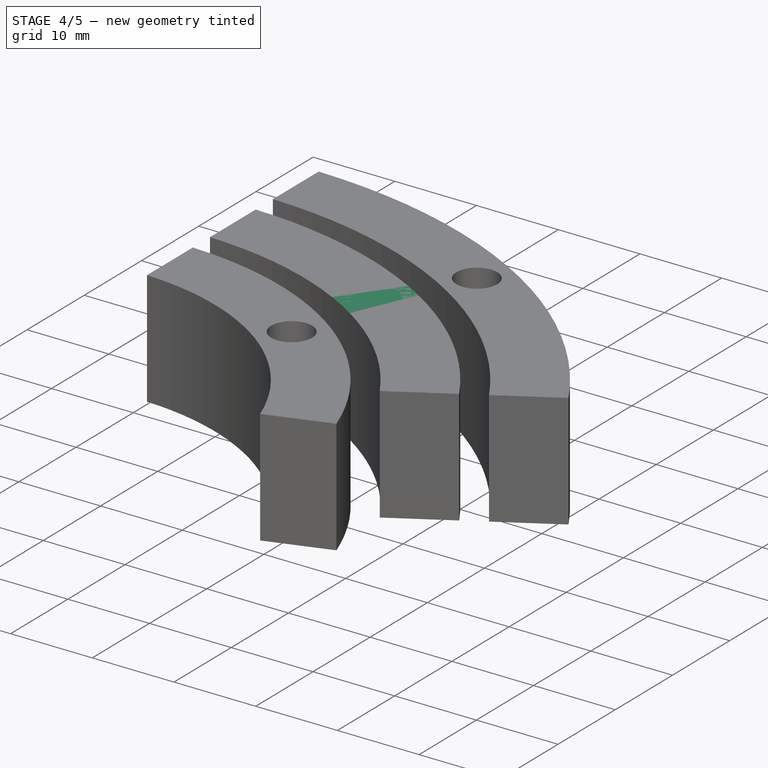
[diagram: stage 4 of 5 — iso view after this stage's code; geometry added in this stage tinted green]
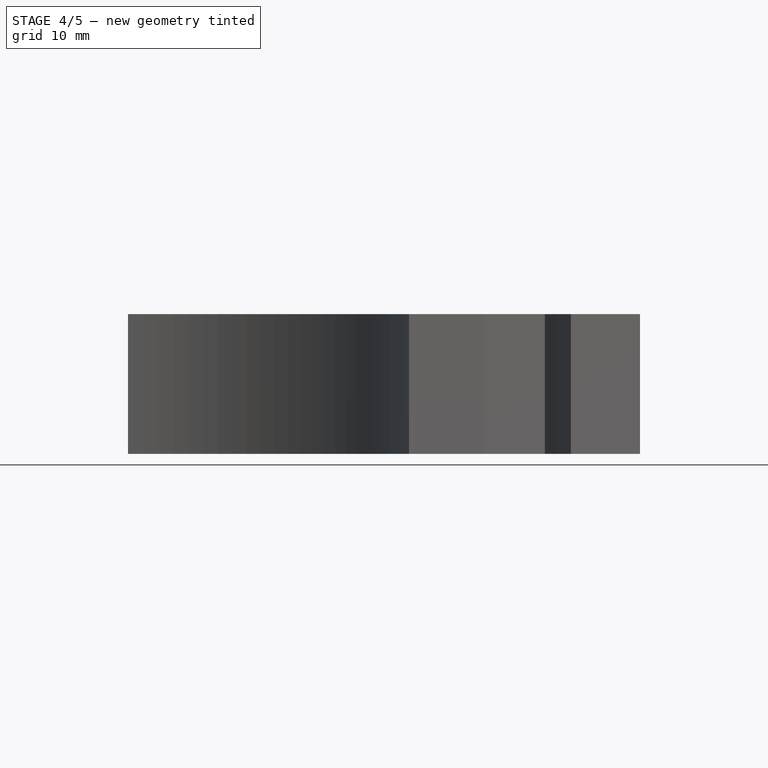
[diagram: stage 4 of 5 — front view after this stage's code; geometry added in this stage tinted green]
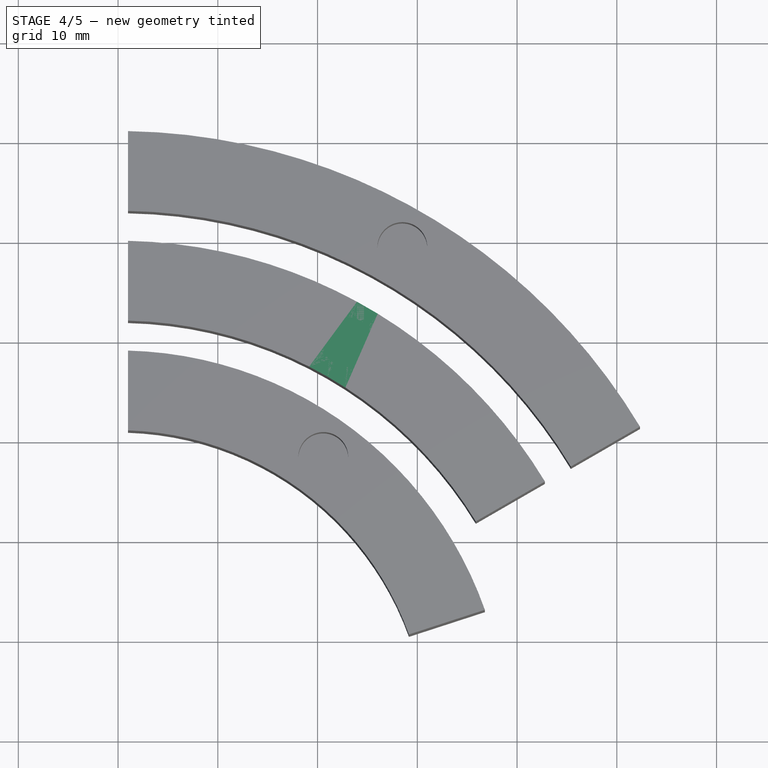
[diagram: stage 4 of 5 — top view after this stage's code; geometry added in this stage tinted green]
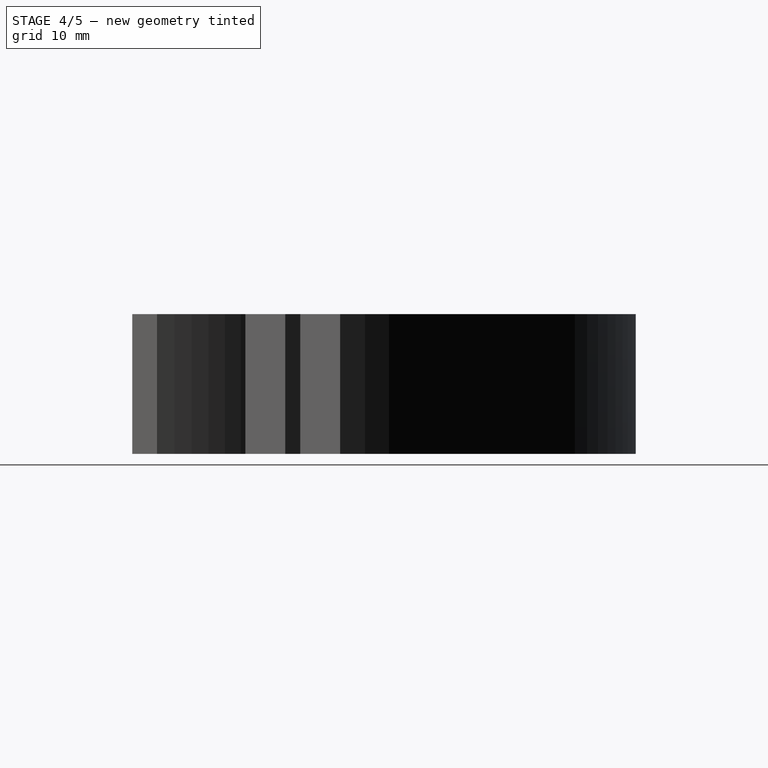
[diagram: stage 4 of 5 — right view after this stage's code; geometry added in this stage tinted green]
FEATURE [PartDesign::Body] Body012  label="Hour001"
  Group = -> [Sketch018,Pad012,Sketch039,Pocket007]
  Origin = -> Origin012
  Tip = -> Pocket007
  expr: .Placement.Rotation.Angle = 0 * <<params>>.hour_angle
FEATURE [Sketcher::SketchObject] Sketch050  label="MinSegSketch002"
  FullyConstrained = true
  MapMode = 5
  Support = -> [XY_Plane023]
  expr: Constraints[6] = <<params>>.seg_gap
  expr: Constraints[4] = <<params>>.seg_thickness
  expr: Constraints[12] = <<params>>.min_angle
  expr: Constraints[7] = <<params>>.min_outer
  expr: Constraints[17] = <<params>>.seg_gap
  expr: Constraints[14] = <<params>>.min_outer
  expr: .Constraints.Outer = <<params>>.min_outer
  sketch-geometry (6):
    g0: ArcOfCircle CenterX=0 CenterY=0 CenterZ=0 NormalX=0 NormalY=0 NormalZ=1 AngleXU=0 Radius=50 StartAngle=0.5436 EndAngle=1.55079
    g1: LineSegment StartX=0 StartY=0 StartZ=0 EndX=43.3013 EndY=25 EndZ=0
    g2: ArcOfCircle CenterX=0 CenterY=0 CenterZ=0 NormalX=0 NormalY=0 NormalZ=1 AngleXU=0 Radius=42.0019 StartAngle=0.547409 EndAngle=1.54699
    g3: LineSegment StartX=35.8644 StartY=21.861 StartZ=0 EndX=42.7926 EndY=25.861 EndZ=0
    g4: LineSegment StartX=1 StartY=49.99 StartZ=0 EndX=1 EndY=41.99 EndZ=0
    g5: LineSegment StartX=0 StartY=0 StartZ=0 EndX=0 EndY=50 EndZ=0
  constraints (18):
    c: Coincident(g1,g0)
    c: Radius(g0) = 50  'Outer'
    c: Coincident(g0,g-1)
    c: Coincident(g2,g0)
    c: Distance(g2,g0) = 8
    c: Parallel(g3,g1)
    c: Distance(g3,g1) = 1
    c: Distance(g1) = 50
    c: Coincident(g2,g3)
    c: Coincident(g0,g3)
    c: Coincident(g4,g2)
    c: Coincident(g4,g0)
    c: Angle(g1,g5,g0) = 1.0472
    c: Angle(g-2,g5,g0) = 0
    c: Distance(g5) = 50
    c: Coincident(g5,g0)
    c: Parallel(g4,g5)
    c: Distance(g0,g5) = 1
FEATURE [PartDesign::Pad] Pad018  label="MinSeg002"
  AllowMultiFace = false
  Direction = (1,1,1)
  Length = 14
  Length2 = 100
  Profile = -> Sketch050
  Type = 0
  expr: Length = <<params>>.seg_height
FEATURE [PartDesign::Body] Body018  label="Min002"
  Group = -> [Sketch050,Pad018,Sketch051,Pocket013]
  Origin = -> Origin018
  Placement = pos=(0,0,0) rot=(0,0,1;1.0472rad)
  Tip = -> Pocket013
  expr: .Placement.Rotation.Angle = 1 * <<params>>.min_angle
FEATURE [Sketcher::SketchObject] Sketch052  label="MinSegSketch003"
  FullyConstrained = true
  MapMode = 5
  Support = -> [XY_Plane024]
  expr: Constraints[6] = <<params>>.seg_gap
  expr: Constraints[4] = <<params>>.seg_thickness
  expr: Constraints[12] = <<params>>.min_angle
  expr: Constraints[7] = <<params>>.min_outer
  expr: Constraints[17] = <<params>>.seg_gap
  expr: Constraints[14] = <<params>>.min_outer
  expr: .Constraints.Outer = <<params>>.min_outer
  sketch-geometry (6):
    g0: ArcOfCircle CenterX=0 CenterY=0 CenterZ=0 NormalX=0 NormalY=0 NormalZ=1 AngleXU=0 Radius=50 StartAngle=0.5436 EndAngle=1.55079
    g1: LineSegment StartX=0 StartY=0 StartZ=0 EndX=43.3013 EndY=25 EndZ=0
    g2: ArcOfCircle CenterX=0 CenterY=0 CenterZ=0 NormalX=0 NormalY=0 NormalZ=1 AngleXU=0 Radius=42.0019 StartAngle=0.547409 EndAngle=1.54699
    g3: LineSegment StartX=35.8644 StartY=21.861 StartZ=0 EndX=42.7926 EndY=25.861 EndZ=0
    g4: LineSegment StartX=1 StartY=49.99 StartZ=0 EndX=1 EndY=41.99 EndZ=0
    g5: LineSegment StartX=0 StartY=0 StartZ=0 EndX=0 EndY=50 EndZ=0
  constraints (18):
    c: Coincident(g1,g0)
    c: Radius(g0) = 50  'Outer'
    c: Coincident(g0,g-1)
    c: Coincident(g2,g0)
    c: Distance(g2,g0) = 8
    c: Parallel(g3,g1)
    c: Distance(g3,g1) = 1
    c: Distance(g1) = 50
    c: Coincident(g2,g3)
    c: Coincident(g0,g3)
    c: Coincident(g4,g2)
    c: Coincident(g4,g0)
    c: Angle(g1,g5,g0) = 1.0472
    c: Angle(g-2,g5,g0) = 0
    c: Distance(g5) = 50
    c: Coincident(g5,g0)
    c: Parallel(g4,g5)
    c: Distance(g0,g5) = 1
FEATURE [PartDesign::Pad] Pad019  label="MinSeg003"
  AllowMultiFace = false
  Direction = (1,1,1)
  Length = 14
  Length2 = 100
  Profile = -> Sketch052
  Type = 0
  expr: Length = <<params>>.seg_height
FEATURE [Sketcher::SketchObject] Sketch053  label="MinHoleSketch003"
  ExternalGeometry = -> [Pad019]
  FullyConstrained = true
  MapMode = 5
  Placement = pos=(0,0,14) rot=(0,0,1;0rad)
  Support = -> [Pad019]
  expr: Constraints[8] = <<params>>.min_angle / 2
  expr: Constraints[10] = <<params>>.hole_radius
  sketch-geometry (4):
    g0: LineSegment StartX=0 StartY=0 StartZ=0 EndX=21.001 EndY=36.3747 EndZ=0
    g1: LineSegment StartX=21.001 StartY=36.3747 StartZ=0 EndX=23.0005 EndY=39.838 EndZ=0
    g2: LineSegment StartX=25 StartY=43.3013 StartZ=0 EndX=23.0005 EndY=39.838 EndZ=0
    g3: Circle CenterX=23.0005 CenterY=39.838 CenterZ=0 NormalX=0 NormalY=0 NormalZ=1 AngleXU=0 Radius=2.5
  constraints (11):
    c: Coincident(g0,g-1)
    c: PointOnObject(g0,g-3)
    c: Coincident(g1,g0)
    c: Coincident(g2,g1)
    c: Equal(g1,g2)
    c: Parallel(g0,g1)
    c: Parallel(g1,g2)
    c: PointOnObject(g2,g-4)
    c: Angle(g0,g-2,g-1) = 0.523599
    c: Coincident(g3,g1)
    c: Radius(g3) = 2.5
FEATURE [PartDesign::Pocket] Pocket014  label="MinHole003"
  AllowMultiFace = false
  BaseFeature = -> Pad019
  Length = 8
  Length2 = 100
  Profile = -> Sketch053
  Type = 0
  expr: Length = <<params>>.hole_depth
FEATURE [PartDesign::Body] Body019  label="Min003"
  Group = -> [Sketch052,Pad019,Sketch053,Pocket014]
  Origin = -> Origin019
  Placement = pos=(0,0,0) rot=(0,0,1;2.0944rad)
  Tip = -> Pocket014
  expr: .Placement.Rotation.Angle = 2 * <<params>>.min_angle
FEATURE [Sketcher::SketchObject] Sketch054  label="MinSegSketch004"
  FullyConstrained = true
  MapMode = 5
  Support = -> [XY_Plane025]
  expr: Constraints[6] = <<params>>.seg_gap
  expr: Constraints[4] = <<params>>.seg_thickness
  expr: Constraints[12] = <<params>>.min_angle
  expr: Constraints[7] = <<params>>.min_outer
  expr: Constraints[17] = <<params>>.seg_gap
  expr: Constraints[14] = <<params>>.min_outer
  expr: .Constraints.Outer = <<params>>.min_outer
  sketch-geometry (6):
    g0: ArcOfCircle CenterX=0 CenterY=0 CenterZ=0 NormalX=0 NormalY=0 NormalZ=1 AngleXU=0 Radius=50 StartAngle=0.5436 EndAngle=1.55079
    g1: LineSegment StartX=0 StartY=0 StartZ=0 EndX=43.3013 EndY=25 EndZ=0
    g2: ArcOfCircle CenterX=0 CenterY=0 CenterZ=0 NormalX=0 NormalY=0 NormalZ=1 AngleXU=0 Radius=42.0019 StartAngle=0.547409 EndAngle=1.54699
    g3: LineSegment StartX=35.8644 StartY=21.861 StartZ=0 EndX=42.7926 EndY=25.861 EndZ=0
    g4: LineSegment StartX=1 StartY=49.99 StartZ=0 EndX=1 EndY=41.99 EndZ=0
    g5: LineSegment StartX=0 StartY=0 StartZ=0 EndX=0 EndY=50 EndZ=0
  constraints (18):
    c: Coincident(g1,g0)
    c: Radius(g0) = 50  'Outer'
    c: Coincident(g0,g-1)
    c: Coincident(g2,g0)
    c: Distance(g2,g0) = 8
    c: Parallel(g3,g1)
    c: Distance(g3,g1) = 1
    c: Distance(g1) = 50
    c: Coincident(g2,g3)
    c: Coincident(g0,g3)
    c: Coincident(g4,g2)
    c: Coincident(g4,g0)
    c: Angle(g1,g5,g0) = 1.0472
    c: Angle(g-2,g5,g0) = 0
    c: Distance(g5) = 50
    c: Coincident(g5,g0)
    c: Parallel(g4,g5)
    c: Distance(g0,g5) = 1
FEATURE [PartDesign::Pad] Pad020  label="MinSeg004"
  AllowMultiFace = false
  Direction = (1,1,1)
  Length = 14
  Length2 = 100
  Profile = -> Sketch054
  Type = 0
  expr: Length = <<params>>.seg_height
FEATURE [Sketcher::SketchObject] Sketch055  label="MinHoleSketch004"
  ExternalGeometry = -> [Pad020]
  FullyConstrained = true
  MapMode = 5
  Placement = pos=(0,0,14) rot=(0,0,1;0rad)
  Support = -> [Pad020]
  expr: Constraints[8] = <<params>>.min_angle / 2
  expr: Constraints[10] = <<params>>.hole_radius
  sketch-geometry (4):
    g0: LineSegment StartX=0 StartY=0 StartZ=0 EndX=21.001 EndY=36.3747 EndZ=0
    g1: LineSegment StartX=21.001 StartY=36.3747 StartZ=0 EndX=23.0005 EndY=39.838 EndZ=0
    g2: LineSegment StartX=25 StartY=43.3013 StartZ=0 EndX=23.0005 EndY=39.838 EndZ=0
    g3: Circle CenterX=23.0005 CenterY=39.838 CenterZ=0 NormalX=0 NormalY=0 NormalZ=1 AngleXU=0 Radius=2.5
  constraints (11):
    c: Coincident(g0,g-1)
    c: PointOnObject(g0,g-3)
    c: Coincident(g1,g0)
    c: Coincident(g2,g1)
    c: Equal(g1,g2)
    c: Parallel(g0,g1)
    c: Parallel(g1,g2)
    c: PointOnObject(g2,g-4)
    c: Angle(g0,g-2,g-1) = 0.523599
    c: Coincident(g3,g1)
    c: Radius(g3) = 2.5
FEATURE [PartDesign::Pocket] Pocket015  label="MinHole004"
  AllowMultiFace = false
  BaseFeature = -> Pad020
  Length = 8
  Length2 = 100
  Profile = -> Sketch055
  Type = 0
  expr: Length = <<params>>.hole_depth
FEATURE [PartDesign::Body] Body020  label="Min004"
  Group = -> [Sketch054,Pad020,Sketch055,Pocket015]
  Origin = -> Origin020
  Placement = pos=(0,0,0) rot=(0,0,1;3.14159rad)
  Tip = -> Pocket015
  expr: .Placement.Rotation.Angle = 3 * <<params>>.min_angle
FEATURE [Sketcher::SketchObject] Sketch056  label="MinSegSketch005"
  FullyConstrained = true
  MapMode = 5
  Support = -> [XY_Plane026]
  expr: Constraints[6] = <<params>>.seg_gap
  expr: Constraints[4] = <<params>>.seg_thickness
  expr: Constraints[12] = <<params>>.min_angle
  expr: Constraints[7] = <<params>>.min_outer
  expr: Constraints[17] = <<params>>.seg_gap
  expr: Constraints[14] = <<params>>.min_outer
  expr: .Constraints.Outer = <<params>>.min_outer
  sketch-geometry (6):
    g0: ArcOfCircle CenterX=0 CenterY=0 CenterZ=0 NormalX=0 NormalY=0 NormalZ=1 AngleXU=0 Radius=50 StartAngle=0.5436 EndAngle=1.55079
    g1: LineSegment StartX=0 StartY=0 StartZ=0 EndX=43.3013 EndY=25 EndZ=0
    g2: ArcOfCircle CenterX=0 CenterY=0 CenterZ=0 NormalX=0 NormalY=0 NormalZ=1 AngleXU=0 Radius=42.0019 StartAngle=0.547409 EndAngle=1.54699
    g3: LineSegment StartX=35.8644 StartY=21.861 StartZ=0 EndX=42.7926 EndY=25.861 EndZ=0
    g4: LineSegment StartX=1 StartY=49.99 StartZ=0 EndX=1 EndY=41.99 EndZ=0
    g5: LineSegment StartX=0 StartY=0 StartZ=0 EndX=0 EndY=50 EndZ=0
  constraints (18):
    c: Coincident(g1,g0)
    c: Radius(g0) = 50  'Outer'
    c: Coincident(g0,g-1)
    c: Coincident(g2,g0)
    c: Distance(g2,g0) = 8
    c: Parallel(g3,g1)
    c: Distance(g3,g1) = 1
    c: Distance(g1) = 50
    c: Coincident(g2,g3)
    c: Coincident(g0,g3)
    c: Coincident(g4,g2)
    c: Coincident(g4,g0)
    c: Angle(g1,g5,g0) = 1.0472
    c: Angle(g-2,g5,g0) = 0
    c: Distance(g5) = 50
    c: Coincident(g5,g0)
    c: Parallel(g4,g5)
    c: Distance(g0,g5) = 1
FEATURE [PartDesign::Pad] Pad021  label="MinSeg005"
  AllowMultiFace = false
  Direction = (1,1,1)
  Length = 14
  Length2 = 100
  Profile = -> Sketch056
  Type = 0
  expr: Length = <<params>>.seg_height
FEATURE [Sketcher::SketchObject] Sketch057  label="MinHoleSketch005"
  ExternalGeometry = -> [Pad021]
  FullyConstrained = true
  MapMode = 5
  Placement = pos=(0,0,14) rot=(0,0,1;0rad)
  Support = -> [Pad021]
  expr: Constraints[8] = <<params>>.min_angle / 2
  expr: Constraints[10] = <<params>>.hole_radius
  sketch-geometry (4):
    g0: LineSegment StartX=0 StartY=0 StartZ=0 EndX=21.001 EndY=36.3747 EndZ=0
    g1: LineSegment StartX=21.001 StartY=36.3747 StartZ=0 EndX=23.0005 EndY=39.838 EndZ=0
    g2: LineSegment StartX=25 StartY=43.3013 StartZ=0 EndX=23.0005 EndY=39.838 EndZ=0
    g3: Circle CenterX=23.0005 CenterY=39.838 CenterZ=0 NormalX=0 NormalY=0 NormalZ=1 AngleXU=0 Radius=2.5
  constraints (11):
    c: Coincident(g0,g-1)
    c: PointOnObject(g0,g-3)
    c: Coincident(g1,g0)
    c: Coincident(g2,g1)
    c: Equal(g1,g2)
    c: Parallel(g0,g1)
    c: Parallel(g1,g2)
    c: PointOnObject(g2,g-4)
    c: Angle(g0,g-2,g-1) = 0.523599
    c: Coincident(g3,g1)
    c: Radius(g3) = 2.5
FEATURE [PartDesign::Pocket] Pocket016  label="MinHole005"
  AllowMultiFace = false
  BaseFeature = -> Pad021
  Length = 8
  Length2 = 100
  Profile = -> Sketch057
  Type = 0
  expr: Length = <<params>>.hole_depth
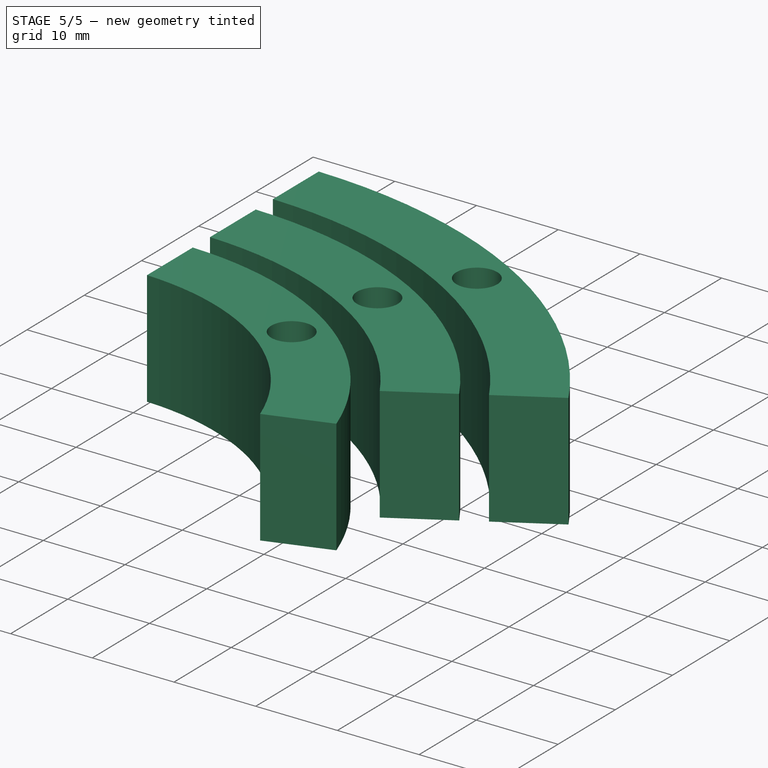
[diagram: stage 5 of 5 — iso view after this stage's code; geometry added in this stage tinted green]
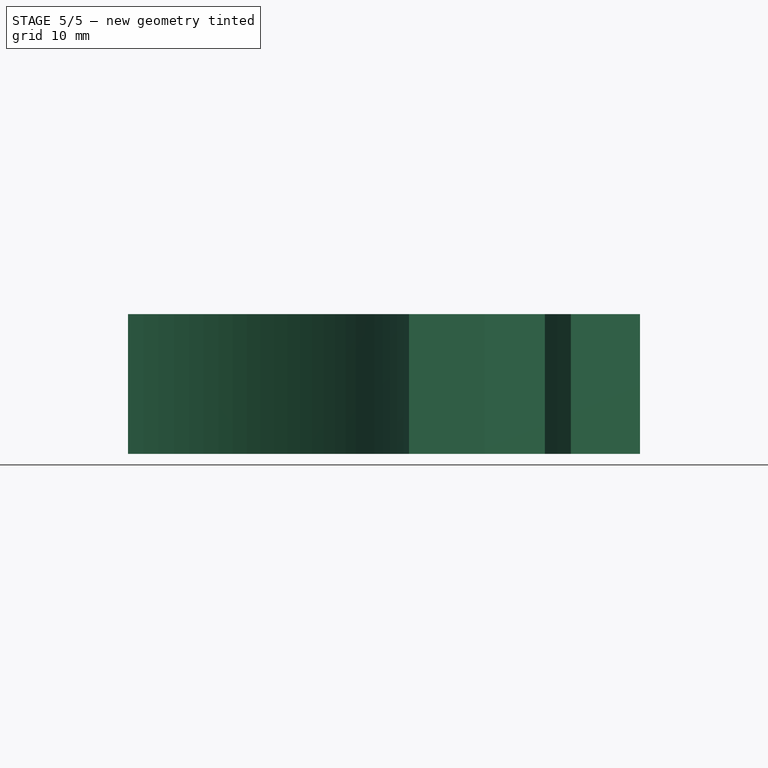
[diagram: stage 5 of 5 — front view after this stage's code; geometry added in this stage tinted green]
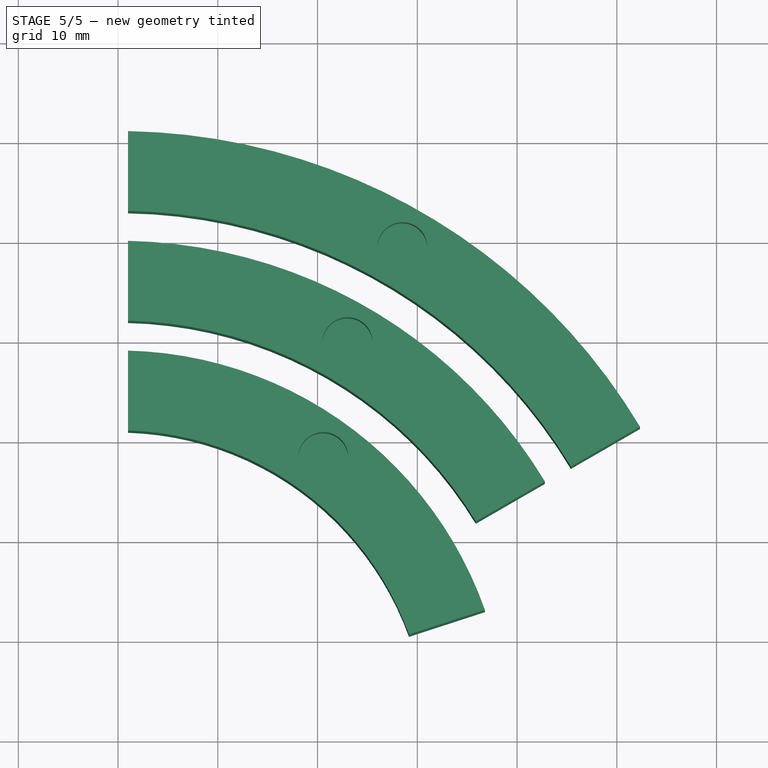
[diagram: stage 5 of 5 — top view after this stage's code; geometry added in this stage tinted green]
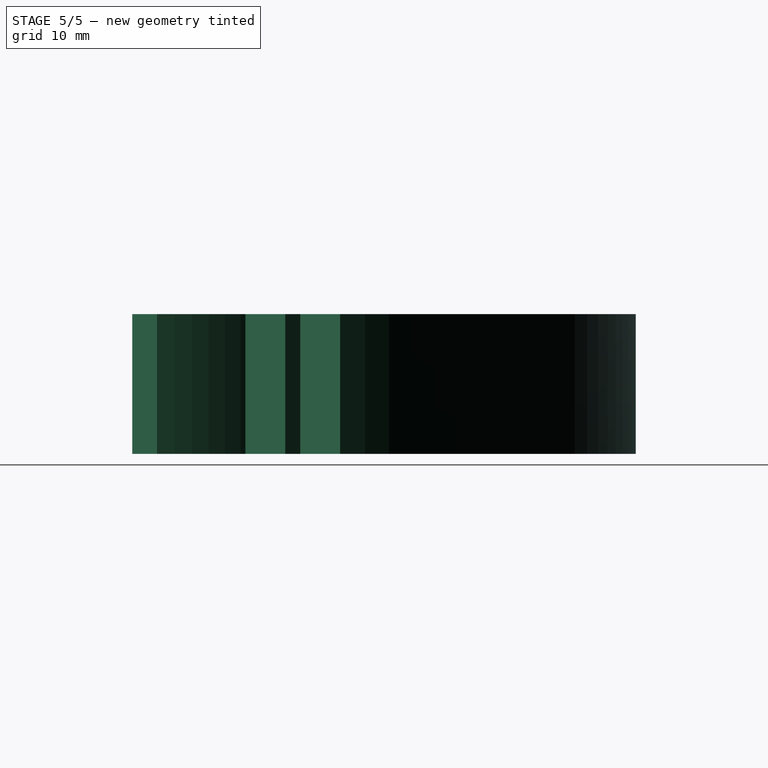
[diagram: stage 5 of 5 — right view after this stage's code; geometry added in this stage tinted green]
FEATURE [Sketcher::SketchObject] Sketch  label="SegSegSketch001"
  FullyConstrained = true
  MapMode = 5
  Support = -> [XY_Plane]
  expr: Constraints[7] = <<params>>.sec_outer
  expr: Constraints[14] = <<params>>.sec_outer
  expr: Constraints[17] = <<params>>.seg_gap
  expr: Constraints[4] = <<params>>.seg_thickness
  expr: Constraints[1] = <<params>>.sec_outer
  expr: Constraints[12] = <<params>>.sec_angle
  expr: Constraints[6] = <<params>>.seg_gap
  sketch-geometry (6):
    g0: ArcOfCircle CenterX=0 CenterY=0 CenterZ=0 NormalX=0 NormalY=0 NormalZ=1 AngleXU=0 Radius=61 StartAngle=0.539993 EndAngle=1.5544
    g1: LineSegment StartX=0 StartY=0 StartZ=0 EndX=52.8275 EndY=30.5 EndZ=0
    g2: ArcOfCircle CenterX=0 CenterY=0 CenterZ=0 NormalX=0 NormalY=0 NormalZ=1 AngleXU=0 Radius=53.0012 StartAngle=0.542467 EndAngle=1.55193
    g3: LineSegment StartX=45.3922 StartY=27.3619 StartZ=0 EndX=52.3205 EndY=31.3619 EndZ=0
    g4: LineSegment StartX=1 StartY=60.9918 StartZ=0 EndX=1 EndY=52.9918 EndZ=0
    g5: LineSegment StartX=0 StartY=0 StartZ=0 EndX=0 EndY=61 EndZ=0
  constraints (18):
    c: Coincident(g1,g0)
    c: Radius(g0) = 61
    c: Coincident(g0,g-1)
    c: Coincident(g2,g0)
    c: Distance(g2,g0) = 8
    c: Parallel(g3,g1)
    c: Distance(g3,g1) = 1
    c: Distance(g1) = 61
    c: Coincident(g2,g3)
    c: Coincident(g0,g3)
    c: Coincident(g4,g2)
    c: Coincident(g4,g0)
    c: Angle(g1,g5,g0) = 1.0472
    c: Angle(g-2,g5,g0) = 0
    c: Distance(g5) = 61
    c: Coincident(g5,g0)
    c: Parallel(g4,g5)
    c: Distance(g0,g5) = 1
FEATURE [PartDesign::Pad] Pad  label="SecSeg001"
  AllowMultiFace = false
  Direction = (1,1,1)
  Length = 14
  Length2 = 100
  Profile = -> Sketch
  Type = 0
  expr: Length = <<params>>.seg_height
FEATURE [Sketcher::SketchObject] Sketch006  label="MinSegSketch001"
  FullyConstrained = true
  MapMode = 5
  Support = -> [XY_Plane006]
  expr: .Constraints.Outer = <<params>>.min_outer
  expr: Constraints[14] = <<params>>.min_outer
  expr: Constraints[17] = <<params>>.seg_gap
  expr: Constraints[7] = <<params>>.min_outer
  expr: Constraints[12] = <<params>>.min_angle
  expr: Constraints[4] = <<params>>.seg_thickness
  expr: Constraints[6] = <<params>>.seg_gap
  sketch-geometry (6):
    g0: ArcOfCircle CenterX=0 CenterY=0 CenterZ=0 NormalX=0 NormalY=0 NormalZ=1 AngleXU=0 Radius=50 StartAngle=0.5436 EndAngle=1.55079
    g1: LineSegment StartX=0 StartY=0 StartZ=0 EndX=43.3013 EndY=25 EndZ=0
    g2: ArcOfCircle CenterX=0 CenterY=0 CenterZ=0 NormalX=0 NormalY=0 NormalZ=1 AngleXU=0 Radius=42.0019 StartAngle=0.547409 EndAngle=1.54699
    g3: LineSegment StartX=35.8644 StartY=21.861 StartZ=0 EndX=42.7926 EndY=25.861 EndZ=0
    g4: LineSegment StartX=1 StartY=49.99 StartZ=0 EndX=1 EndY=41.99 EndZ=0
    g5: LineSegment StartX=0 StartY=0 StartZ=0 EndX=0 EndY=50 EndZ=0
  constraints (18):
    c: Coincident(g1,g0)
    c: Radius(g0) = 50  'Outer'
    c: Coincident(g0,g-1)
    c: Coincident(g2,g0)
    c: Distance(g2,g0) = 8
    c: Parallel(g3,g1)
    c: Distance(g3,g1) = 1
    c: Distance(g1) = 50
    c: Coincident(g2,g3)
    c: Coincident(g0,g3)
    c: Coincident(g4,g2)
    c: Coincident(g4,g0)
    c: Angle(g1,g5,g0) = 1.0472
    c: Angle(g-2,g5,g0) = 0
    c: Distance(g5) = 50
    c: Coincident(g5,g0)
    c: Parallel(g4,g5)
    c: Distance(g0,g5) = 1
FEATURE [PartDesign::Pad] Pad006  label="MinSeg001"
  AllowMultiFace = false
  Direction = (1,1,1)
  Length = 14
  Length2 = 100
  Profile = -> Sketch006
  Type = 0
  expr: Length = <<params>>.seg_height
FEATURE [Sketcher::SketchObject] Sketch018  label="HourSegSketch001"
  FullyConstrained = true
  MapMode = 5
  Support = -> [XY_Plane017]
  expr: .Constraints.Outer = <<params>>.hour_outer
  expr: Constraints[14] = <<params>>.hour_outer
  expr: Constraints[17] = <<params>>.seg_gap
  expr: Constraints[7] = <<params>>.hour_outer
  expr: Constraints[4] = <<params>>.seg_thickness
  expr: Constraints[6] = <<params>>.seg_gap
  expr: Constraints[12] = <<params>>.hour_angle
  sketch-geometry (6):
    g0: ArcOfCircle CenterX=0 CenterY=0 CenterZ=0 NormalX=0 NormalY=0 NormalZ=1 AngleXU=0 Radius=39 StartAngle=0.339803 EndAngle=1.54515
    g1: LineSegment StartX=0 StartY=0 StartZ=0 EndX=37.0912 EndY=12.0517 EndZ=0
    g2: ArcOfCircle CenterX=0 CenterY=0 CenterZ=0 NormalX=0 NormalY=0 NormalZ=1 AngleXU=0 Radius=31.0033 StartAngle=0.346419 EndAngle=1.53854
    g3: LineSegment StartX=29.1615 StartY=10.5266 StartZ=0 EndX=36.77 EndY=12.9988 EndZ=0
    g4: LineSegment StartX=1 StartY=38.9872 StartZ=0 EndX=1 EndY=30.9872 EndZ=0
    g5: LineSegment StartX=0 StartY=0 StartZ=0 EndX=0 EndY=39 EndZ=0
  constraints (18):
    c: Coincident(g1,g0)
    c: Radius(g0) = 39  'Outer'
    c: Coincident(g0,g-1)
    c: Coincident(g2,g0)
    c: Distance(g2,g0) = 8
    c: Parallel(g3,g1)
    c: Distance(g3,g1) = 1
    c: Distance(g1) = 39
    c: Coincident(g2,g3)
    c: Coincident(g0,g3)
    c: Coincident(g4,g2)
    c: Coincident(g4,g0)
    c: Angle(g1,g5,g0) = 1.25664
    c: Angle(g-2,g5,g0) = 0
    c: Distance(g5) = 39
    c: Coincident(g5,g0)
    c: Parallel(g4,g5)
    c: Distance(g0,g5) = 1
FEATURE [PartDesign::Pad] Pad012  label="HourSeg001"
  AllowMultiFace = false
  Direction = (1,1,1)
  Length = 14
  Length2 = 100
  Profile = -> Sketch018
  Type = 0
  expr: Length = <<params>>.seg_height
FEATURE [Sketcher::SketchObject] Sketch027  label="SecHoleSketch001"
  ExternalGeometry = -> [Pad]
  FullyConstrained = true
  MapMode = 5
  Placement = pos=(0,0,14) rot=(0,0,1;0rad)
  Support = -> [Pad]
  expr: Constraints[0] = <<params>>.hole_radius
  expr: Constraints[6] = <<params>>.sec_angle / 2
  sketch-geometry (4):
    g0: Circle CenterX=28.5003 CenterY=49.364 CenterZ=0 NormalX=0 NormalY=0 NormalZ=1 AngleXU=0 Radius=2.5
    g1: LineSegment StartX=26.5006 StartY=45.9004 StartZ=0 EndX=28.5003 EndY=49.364 EndZ=0
    g2: LineSegment StartX=28.5003 StartY=49.364 StartZ=0 EndX=30.5 EndY=52.8275 EndZ=0
    g3: LineSegment StartX=0 StartY=0 StartZ=0 EndX=26.5006 EndY=45.9004 EndZ=0
  constraints (11):
    c: Radius(g0) = 2.5
    c: Coincident(g2,g1)
    c: PointOnObject(g2,g-4)
    c: Equal(g2,g1)
    c: Coincident(g0,g1)
    c: Coincident(g3,g-1)
    c: Angle(g3,g-2,g-1) = 0.523599
    c: Coincident(g1,g3)
    c: PointOnObject(g1,g-3)
    c: Parallel(g3,g1)
    c: Parallel(g1,g2)
FEATURE [PartDesign::Pocket] Pocket  label="SecHole001"
  AllowMultiFace = false
  BaseFeature = -> Pad
  Length = 8
  Length2 = 100
  Profile = -> Sketch027
  Type = 0
  expr: Length = <<params>>.hole_depth
FEATURE [PartDesign::Body] Body  label="Sec001"
  Group = -> [Sketch,Pad,Sketch027,Pocket]
  Origin = -> Origin
  Tip = -> Pocket
  expr: .Placement.Rotation.Angle = 0 * <<params>>.sec_angle
FEATURE [Sketcher::SketchObject] Sketch033  label="MinHoleSketch001"
  ExternalGeometry = -> [Pad006]
  FullyConstrained = true
  MapMode = 5
  Placement = pos=(0,0,14) rot=(0,0,1;0rad)
  Support = -> [Pad006]
  expr: Constraints[10] = <<params>>.hole_radius
  expr: Constraints[8] = <<params>>.min_angle / 2
  sketch-geometry (4):
    g0: LineSegment StartX=0 StartY=0 StartZ=0 EndX=21.001 EndY=36.3747 EndZ=0
    g1: LineSegment StartX=21.001 StartY=36.3747 StartZ=0 EndX=23.0005 EndY=39.838 EndZ=0
    g2: LineSegment StartX=25 StartY=43.3013 StartZ=0 EndX=23.0005 EndY=39.838 EndZ=0
    g3: Circle CenterX=23.0005 CenterY=39.838 CenterZ=0 NormalX=0 NormalY=0 NormalZ=1 AngleXU=0 Radius=2.5
  constraints (11):
    c: Coincident(g0,g-1)
    c: PointOnObject(g0,g-3)
    c: Coincident(g1,g0)
    c: Coincident(g2,g1)
    c: Equal(g1,g2)
    c: Parallel(g0,g1)
    c: Parallel(g1,g2)
    c: PointOnObject(g2,g-4)
    c: Angle(g0,g-2,g-1) = 0.523599
    c: Coincident(g3,g1)
    c: Radius(g3) = 2.5
FEATURE [PartDesign::Pocket] Pocket006  label="MinHole001"
  AllowMultiFace = false
  BaseFeature = -> Pad006
  Length = 8
  Length2 = 100
  Profile = -> Sketch033
  Type = 0
  expr: Length = <<params>>.hole_depth
FEATURE [PartDesign::Body] Body006  label="Min001"
  Group = -> [Sketch006,Pad006,Sketch033,Pocket006]
  Origin = -> Origin006
  Tip = -> Pocket006
  expr: .Placement.Rotation.Angle = 0 * <<params>>.min_angle
FEATURE [Sketcher::SketchObject] Sketch039  label="HourHoleSketch001"
  ExternalGeometry = -> [Pad012]
  FullyConstrained = true
  MapMode = 5
  Placement = pos=(0,0,14) rot=(0,0,1;0rad)
  Support = -> [Pad012]
  expr: Constraints[10] = <<params>>.hole_radius
  expr: Constraints[8] = <<params>>.hour_angle / 2
  sketch-geometry (4):
    g0: LineSegment StartX=0 StartY=0 StartZ=0 EndX=18.2233 EndY=25.0822 EndZ=0
    g1: LineSegment StartX=18.2233 StartY=25.0822 StartZ=0 EndX=20.5735 EndY=28.3169 EndZ=0
    g2: LineSegment StartX=20.5735 StartY=28.3169 StartZ=0 EndX=22.9236 EndY=31.5517 EndZ=0
    g3: Circle CenterX=20.5735 CenterY=28.3169 CenterZ=0 NormalX=0 NormalY=0 NormalZ=1 AngleXU=0 Radius=2.5
  constraints (11):
    c: Coincident(g0,g-1)
    c: PointOnObject(g0,g-3)
    c: Coincident(g1,g0)
    c: Coincident(g2,g1)
    c: PointOnObject(g2,g-4)
    c: Equal(g1,g2)
    c: Parallel(g2,g1)
    c: Parallel(g1,g0)
    c: Angle(g0,g-2,g-1) = 0.628319
    c: Coincident(g3,g1)
    c: Radius(g3) = 2.5
FEATURE [Spreadsheet::Sheet] Spreadsheet  label="params"
  cells = A1=sec_outer; B1(sec_outer)=61; D1=sec_num; E1(sec_num)=6; G1=sec_angle; H1(sec_angle)==360 / sec_num; A2=min_outer; B2(min_outer)==sec_outer - seg_thickness - ring_gap; D2=min_num; E2(min_num)=6; G2=min_angle; H2(min_angle)==360 / min_num; A3=hour_outer; B3(hour_outer)==min_outer - seg_thickness - ring_gap; D3=hour_num; E3(hour_num)=5; G3=hour_angle; H3(hour_angle)==360 / hour_num; A5=seg_thickness; B5(seg_thickness)=8; D5=ring_gap; E5(ring_gap)=3; A6=seg_gap; B6(seg_gap)=1; A7=seg_height; B7(seg_height)=14; A9=hole_depth; B9(hole_depth)=8; A10=hole_radius; B10(hole_radius)=2.5
FEATURE [PartDesign::Pocket] Pocket007  label="HourHole001"
  BaseFeature = -> Pad012
  Length = 8
  Length2 = 100
  Profile = -> Sketch039
  Type = 0
  expr: Length = <<params>>.hole_depth
FEATURE [Sketcher::SketchObject] Sketch051  label="MinHoleSketch002"
  ExternalGeometry = -> [Pad018]
  FullyConstrained = true
  MapMode = 5
  Placement = pos=(0,0,14) rot=(0,0,1;0rad)
  Support = -> [Pad018]
  expr: Constraints[8] = <<params>>.min_angle / 2
  expr: Constraints[10] = <<params>>.hole_radius
  sketch-geometry (4):
    g0: LineSegment StartX=0 StartY=0 StartZ=0 EndX=21.001 EndY=36.3747 EndZ=0
    g1: LineSegment StartX=21.001 StartY=36.3747 StartZ=0 EndX=23.0005 EndY=39.838 EndZ=0
    g2: LineSegment StartX=25 StartY=43.3013 StartZ=0 EndX=23.0005 EndY=39.838 EndZ=0
    g3: Circle CenterX=23.0005 CenterY=39.838 CenterZ=0 NormalX=0 NormalY=0 NormalZ=1 AngleXU=0 Radius=2.5
  constraints (11):
    c: Coincident(g0,g-1)
    c: PointOnObject(g0,g-3)
    c: Coincident(g1,g0)
    c: Coincident(g2,g1)
    c: Equal(g1,g2)
    c: Parallel(g0,g1)
    c: Parallel(g1,g2)
    c: PointOnObject(g2,g-4)
    c: Angle(g0,g-2,g-1) = 0.523599
    c: Coincident(g3,g1)
    c: Radius(g3) = 2.5
FEATURE [PartDesign::Pocket] Pocket013  label="MinHole002"
  AllowMultiFace = false
  BaseFeature = -> Pad018
  Length = 8
  Length2 = 100
  Profile = -> Sketch051
  Type = 0
  expr: Length = <<params>>.hole_depth
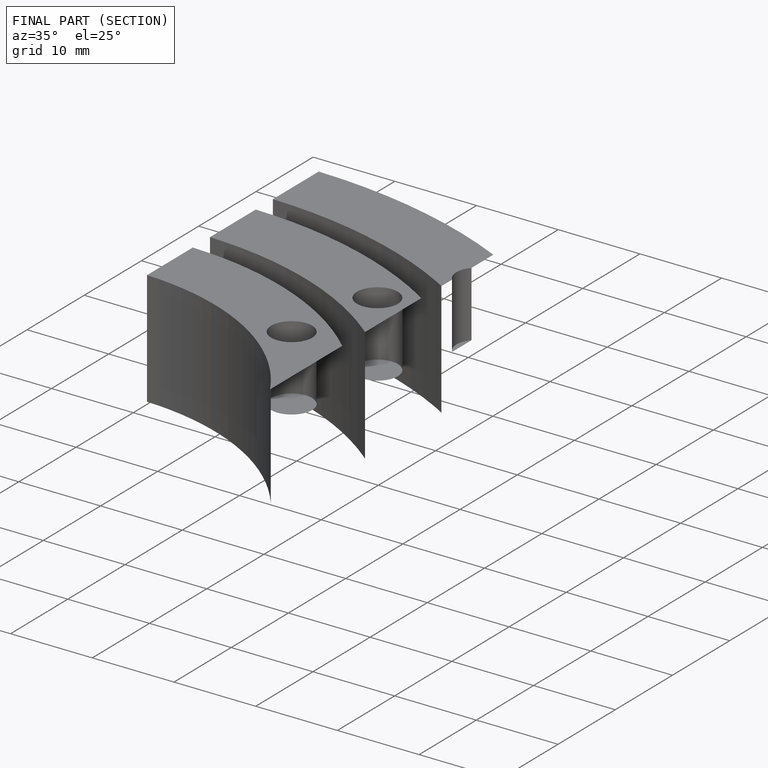
[diagram: finished part — half-section view (interior)]
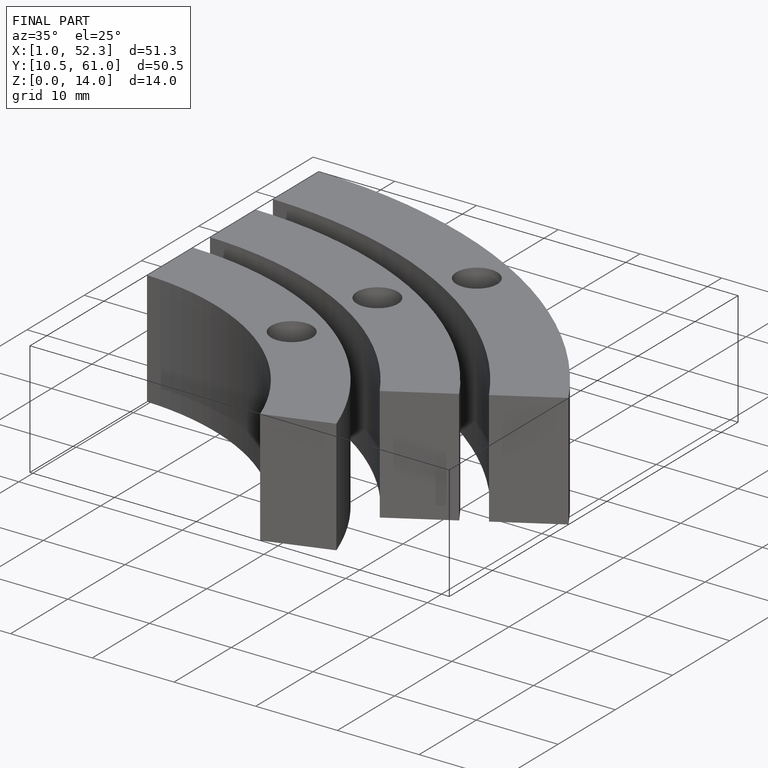
[diagram: finished part — iso view with bounding-box wireframe]
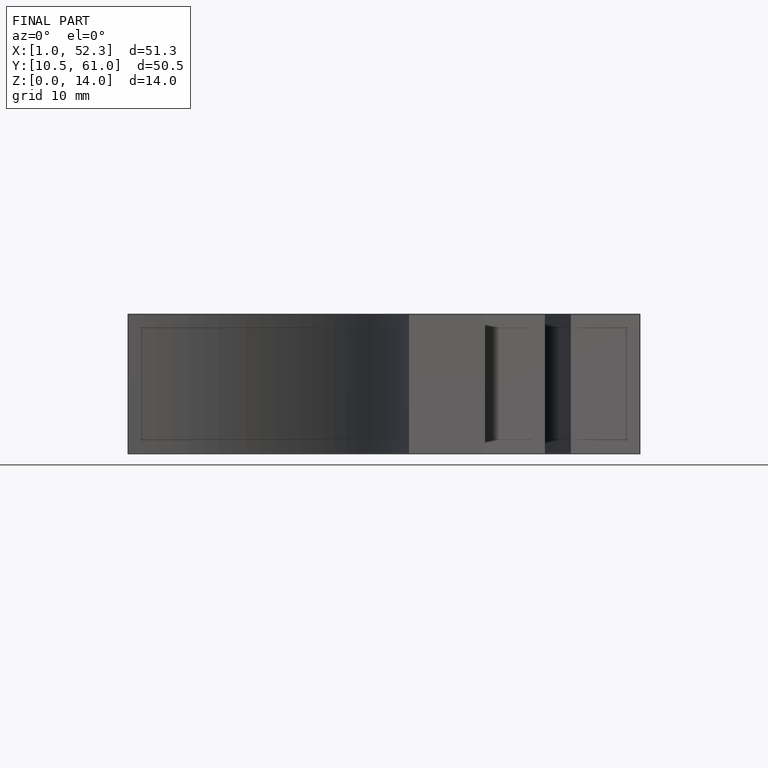
[diagram: finished part — front view with bounding-box wireframe]
